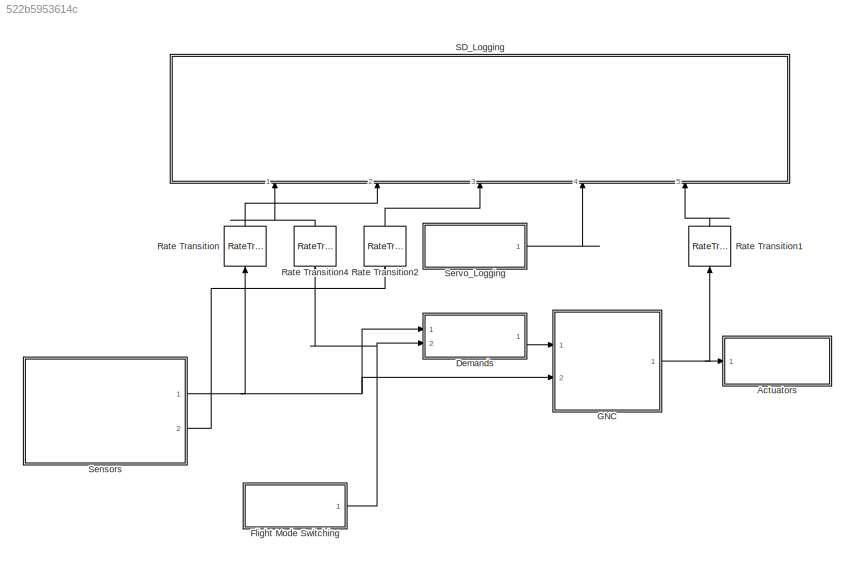
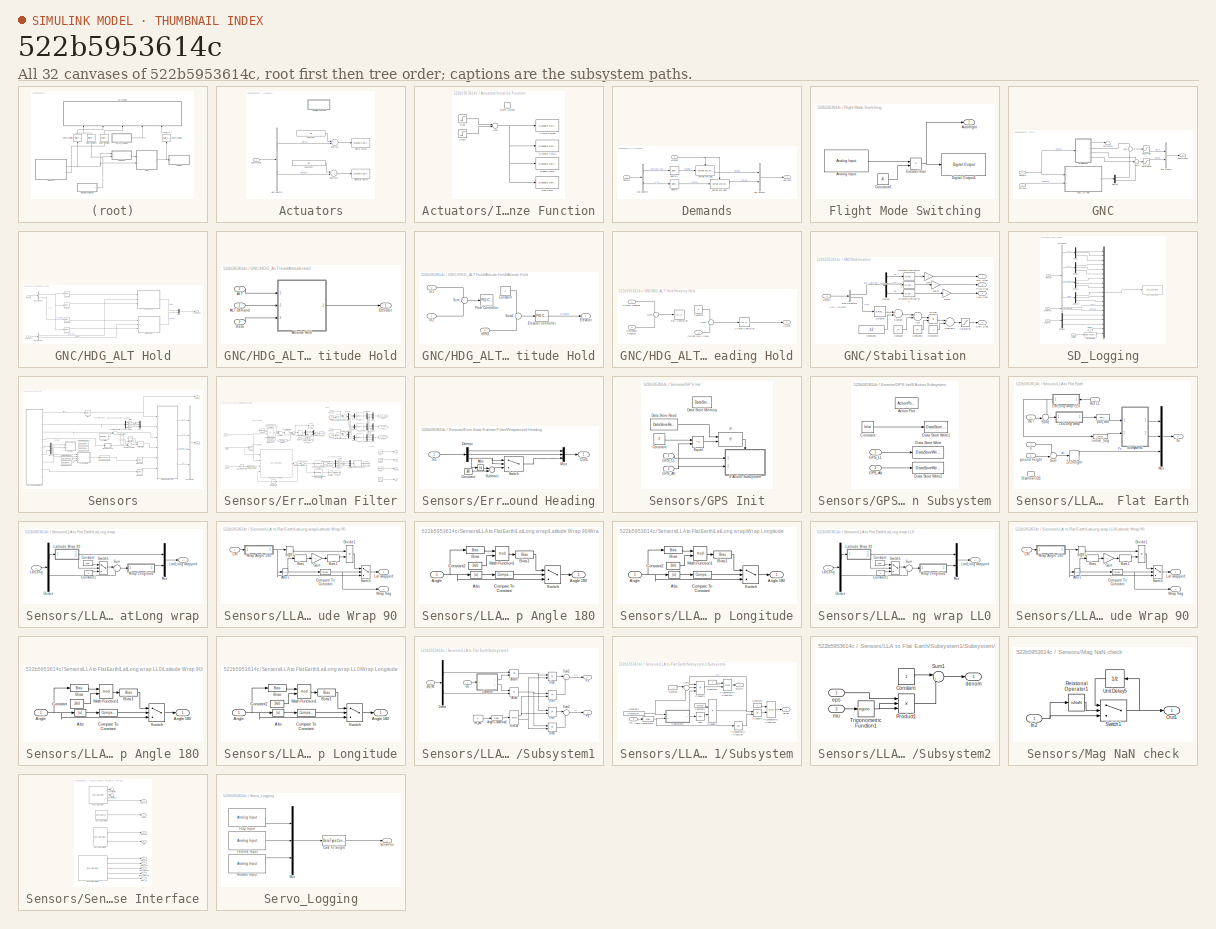
[diagram: thumbnail index - all 32 canvases of the model, root first then tree order]
MODEL slx_522b5953614c
KIND model
CONFIG AbsTol = auto
CONFIG EnableMultiTasking = off
CONFIG FixedStep = auto
CONFIG MaxStep = auto
CONFIG MinStep = auto
CONFIG RelTol = 1e-3
CONFIG SampleTimeConstraint = Unconstrained
CONFIG Solver = FixedStepDiscrete
CONFIG SolverName = FixedStepDiscrete
CONFIG StartTime = 0.0
CONFIG StopTime = inf
WORKSPACE source: MAT-file member
WORKSPACE actuatorCentres: struct (value not decoded)
BLOCK [SubSystem] Actuators
  Ports = [1]
  RequestExecContextInheritance = off
  VariantControl = SimType == 1
BLOCK [Reference] Actuators/Aileron Servos  REF=arduinolib/Standard Servo Write
  Ports = [1]
  SourceBlock = arduinolib/Standard Servo Write
  SourceProductBaseCode = ARDUINO
  SourceProductName = Simulink Support Package for Arduino Hardware
  SourceType = Arduino Standard Servo Write
BLOCK [BusSelector] Actuators/Bus Selector
  OutputAsBus = off
  OutputSignals = Aileron,Elevator
  Ports = [1, 2]
BLOCK [Inport] Actuators/Commands
  IconDisplay = Port number
  OutDataTypeStr = Bus: Commands
BLOCK [Constant] Actuators/Constant
  Value = 90
  VectorParams1D = off
BLOCK [Constant] Actuators/Constant1
  Value = 90
  VectorParams1D = off
BLOCK [Reference] Actuators/Elevator Servo  REF=arduinolib/Standard Servo Write
  Ports = [1]
  SourceBlock = arduinolib/Standard Servo Write
  SourceProductBaseCode = ARDUINO
  SourceProductName = Simulink Support Package for Arduino Hardware
  SourceType = Arduino Standard Servo Write
BLOCK [SubSystem] Actuators/Initialize Function
  Commented = on
  Ports = []
  RequestExecContextInheritance = off
  TreatAsAtomicUnit = on
BLOCK [Reference] Actuators/Initialize Function/Aileron Servos  REF=arduinolib/Standard Servo Write
  Ports = [1]
  SourceBlock = arduinolib/Standard Servo Write
  SourceProductBaseCode = ARDUINO
  SourceProductName = Simulink Support Package for Arduino Hardware
  SourceType = Arduino Standard Servo Write
BLOCK [Reference] Actuators/Initialize Function/Elevator Servo  REF=arduinolib/Standard Servo Write
  Ports = [1]
  SourceBlock = arduinolib/Standard Servo Write
  SourceProductBaseCode = ARDUINO
  SourceProductName = Simulink Support Package for Arduino Hardware
  SourceType = Arduino Standard Servo Write
BLOCK [EventListener] Actuators/Initialize Function/Event Listener
  DisableCoverage = on
  EventName = reset
BLOCK [Reference] Actuators/Initialize Function/Flap Servo  REF=arduinolib/Standard Servo Write
  Ports = [1]
  SourceBlock = arduinolib/Standard Servo Write
  SourceProductBaseCode = ARDUINO
  SourceProductName = Simulink Support Package for Arduino Hardware
  SourceType = Arduino Standard Servo Write
BLOCK [Reference] Actuators/Initialize Function/Rudder Servo  REF=arduinolib/Standard Servo Write
  Ports = [1]
  SourceBlock = arduinolib/Standard Servo Write
  SourceProductBaseCode = ARDUINO
  SourceProductName = Simulink Support Package for Arduino Hardware
  SourceType = Arduino Standard Servo Write
BLOCK [Step] Actuators/Initialize Function/Step
  After = 180
  SampleTime = 0
BLOCK [Step] Actuators/Initialize Function/Step1
  After = 180
  SampleTime = 0
  Time = 6
BLOCK [Sum] Actuators/Initialize Function/Sum
  InputSameDT = off
  Inputs = +-
  OutDataTypeStr = Inherit: Inherit via internal rule
  Ports = [2, 1]
  SaturateOnIntegerOverflow = off
BLOCK [Sum] Actuators/Subtract
  InputSameDT = off
  OutDataTypeStr = Inherit: Inherit via internal rule
  Ports = [2, 1]
  RndMeth = Simplest
  SaturateOnIntegerOverflow = off
BLOCK [Sum] Actuators/Subtract1
  InputSameDT = off
  OutDataTypeStr = Inherit: Inherit via internal rule
  Ports = [2, 1]
  SaturateOnIntegerOverflow = off
BLOCK [SubSystem] Demands
  Ports = [2, 1]
  RequestExecContextInheritance = off
BLOCK [Inport] Demands/ Sensors
  IconDisplay = Port number
BLOCK [Inport] Demands/Autoflight
  IconDisplay = Port number
  Port = 2
BLOCK [BusCreator] Demands/Bus Creator
  DisplayOption = bar
  InheritFromInputs = on
  Inputs = 2
  OutDataTypeStr = Bus: Demands
  Ports = [2, 1]
BLOCK [BusSelector] Demands/Bus Selector
  OutputAsBus = off
  OutputSignals = phi_theta_psi,X_e
  Ports = [1, 2]
BLOCK [Outport] Demands/Demands
  IconDisplay = Port number
BLOCK [Reference] Demands/Sample and Hold  REF=dspsigops/Sample
and Hold
  Ports = [1, 1, 0, 1]
  SourceBlock = dspsigops/Sample\nand Hold
  SourceProductBaseCode = DS
  SourceProductName = DSP System Toolbox
  SourceType = Sample and Hold
BLOCK [Reference] Demands/Sample and Hold1  REF=dspsigops/Sample
and Hold
  Ports = [1, 1, 0, 1]
  SourceBlock = dspsigops/Sample\nand Hold
  SourceProductBaseCode = DS
  SourceProductName = DSP System Toolbox
  SourceType = Sample and Hold
BLOCK [Selector] Demands/Selector
  IndexMode = Zero-based
  IndexOptions = Index vector (dialog)
  Indices = [2]
  InputPortWidth = 3
  OutputSizes = 1
  Ports = [1, 1]
BLOCK [Selector] Demands/Selector1
  IndexMode = Zero-based
  IndexOptions = Index vector (dialog)
  Indices = [2]
  InputPortWidth = 3
  OutputSizes = 1
  Ports = [1, 1]
BLOCK [SubSystem] Flight Mode Switching
  Ports = [0, 1]
  RequestExecContextInheritance = off
  TreatAsGroupedWhenPropagatingVariantConditions = off
BLOCK [Reference] Flight Mode Switching/Analog Input  REF=arduinolib/Analog Input
  Ports = [0, 1]
  SourceBlock = arduinolib/Analog Input
  SourceProductBaseCode = ARDUINO
  SourceProductName = Simulink Support Package for Arduino Hardware
  SourceType = Arduino Analog Input
BLOCK [Outport] Flight Mode Switching/Autoflight
  IconDisplay = Port number
BLOCK [Constant] Flight Mode Switching/Constant4
  OutDataTypeStr = uint16
  Value = 45
BLOCK [Reference] Flight Mode Switching/Digital Output1  REF=arduinolib/Digital Output
  Ports = [1]
  SourceBlock = arduinolib/Digital Output
  SourceProductBaseCode = ARDUINO
  SourceProductName = Simulink Support Package for Arduino Hardware
  SourceType = Arduino Digital Output
BLOCK [RelationalOperator] Flight Mode Switching/GreaterThan
  InputSameDT = off
  Operator = >
  OutDataTypeStr = boolean
  Ports = [2, 1]
  RndMeth = Simplest
BLOCK [SubSystem] GNC
  Ports = [2, 1]
  RequestExecContextInheritance = off
  VariantControl = SimType==1
BLOCK [BusCreator] GNC/Bus Creator
  DisplayOption = bar
  InheritFromInputs = on
  Inputs = Aileron,Elevator
  OutDataTypeStr = Bus: Commands
  Ports = [2, 1]
BLOCK [Outport] GNC/Commands
  IconDisplay = Port number
BLOCK [Inport] GNC/Demands
  IconDisplay = Port number
  OutDataTypeStr = Bus: Demands
BLOCK [Demux] GNC/Demux
  DisplayOption = bar
  Outputs = 2
  Ports = [1, 2]
BLOCK [SubSystem] GNC/HDG_ALT Hold
  Ports = [2, 1]
  RequestExecContextInheritance = off
BLOCK [SubSystem] GNC/HDG_ALT Hold/Altitude Hold
  Ports = [3, 1]
  PreDeleteFcn = Stateflow.SLINSF.SimulinkMan.removePreDeleteFcn
  RequestExecContextInheritance = off
  UndoDeleteFcn = Stateflow.SLINSF.SimulinkMan.restorePreDeleteFcn
BLOCK [Inport] GNC/HDG_ALT Hold/Altitude Hold/ALT
  IconDisplay = Port number
BLOCK [Inport] GNC/HDG_ALT Hold/Altitude Hold/ALT Demand
  IconDisplay = Port number
  Port = 2
BLOCK [SubSystem] GNC/HDG_ALT Hold/Altitude Hold/Altitude Hold
  Ports = [3, 1]
  RequestExecContextInheritance = off
BLOCK [Constant] GNC/HDG_ALT Hold/Altitude Hold/Altitude Hold/Constant
  OutDataTypeStr = single
  Value = 0
BLOCK [Outport] GNC/HDG_ALT Hold/Altitude Hold/Altitude Hold/Elevator
  IconDisplay = Port number
BLOCK [Reference] GNC/HDG_ALT Hold/Altitude Hold/Altitude Hold/Elevator Controller  REF=simulink/Continuous/PID Controller
  Ports = [1, 1]
  SourceBlock = simulink/Continuous/PID Controller
  SourceProductBaseCode = SL
  SourceProductName = Simulink
  SourceType = PID 1dof
BLOCK [Inport] GNC/HDG_ALT Hold/Altitude Hold/Altitude Hold/In1
  IconDisplay = Port number
BLOCK [Inport] GNC/HDG_ALT Hold/Altitude Hold/Altitude Hold/In2
  IconDisplay = Port number
  Port = 2
BLOCK [Reference] GNC/HDG_ALT Hold/Altitude Hold/Altitude Hold/Pitch Controller  REF=simulink/Continuous/PID Controller
  Ports = [1, 1]
  SourceBlock = simulink/Continuous/PID Controller
  SourceProductBaseCode = SL
  SourceProductName = Simulink
  SourceType = PID 1dof
BLOCK [Sum] GNC/HDG_ALT Hold/Altitude Hold/Altitude Hold/Sum
  IconShape = round
  InputSameDT = off
  Inputs = +-
  OutDataTypeStr = Inherit: Inherit via internal rule
  Ports = [2, 1]
  SaturateOnIntegerOverflow = off
BLOCK [Sum] GNC/HDG_ALT Hold/Altitude Hold/Altitude Hold/Sum1
  IconShape = round
  InputSameDT = off
  Inputs = +-
  OutDataTypeStr = Inherit: Inherit via internal rule
  Ports = [2, 1]
  SaturateOnIntegerOverflow = off
BLOCK [Inport] GNC/HDG_ALT Hold/Altitude Hold/Altitude Hold/theta
  IconDisplay = Port number
  Port = 3
BLOCK [Outport] GNC/HDG_ALT Hold/Altitude Hold/Elevator
  IconDisplay = Port number
BLOCK [Inport] GNC/HDG_ALT Hold/Altitude Hold/theta
  IconDisplay = Port number
  Port = 3
BLOCK [BusSelector] GNC/HDG_ALT Hold/Bus Selector
  OutputAsBus = off
  OutputSignals = phi_theta_psi,X_e
  Ports = [1, 2]
BLOCK [BusSelector] GNC/HDG_ALT Hold/Bus Selector1
  OutputAsBus = off
  OutputSignals = Heading,Altitude
  Ports = [1, 2]
BLOCK [Outport] GNC/HDG_ALT Hold/Commands
  IconDisplay = Port number
BLOCK [Inport] GNC/HDG_ALT Hold/Demands
  IconDisplay = Port number
  OutDataTypeStr = Bus: Demands
  Port = 2
BLOCK [SubSystem] GNC/HDG_ALT Hold/Heading Hold
  Ports = [3, 1]
  RequestExecContextInheritance = off
BLOCK [Outport] GNC/HDG_ALT Hold/Heading Hold/Aileron
  IconDisplay = Port number
BLOCK [Reference] GNC/HDG_ALT Hold/Heading Hold/Aileron Controller  REF=simulink/Continuous/PID Controller
  Ports = [1, 1]
  SourceBlock = simulink/Continuous/PID Controller
  SourceProductBaseCode = SL
  SourceProductName = Simulink
  SourceType = PID 1dof
BLOCK [Constant] GNC/HDG_ALT Hold/Heading Hold/Constant
  OutDataTypeStr = single
  Value = 0
BLOCK [Inport] GNC/HDG_ALT Hold/Heading Hold/Current Heading
  IconDisplay = Port number
BLOCK [Inport] GNC/HDG_ALT Hold/Heading Hold/Current Roll Angle
  IconDisplay = Port number
  Port = 3
BLOCK [Inport] GNC/HDG_ALT Hold/Heading Hold/Demanded Heading
  IconDisplay = Port number
  Port = 2
BLOCK [Reference] GNC/HDG_ALT Hold/Heading Hold/Roll Controller  REF=simulink/Continuous/PID Controller
  Ports = [1, 1]
  SourceBlock = simulink/Continuous/PID Controller
  SourceProductBaseCode = SL
  SourceProductName = Simulink
  SourceType = PID 1dof
BLOCK [Sum] GNC/HDG_ALT Hold/Heading Hold/Sum
  IconShape = round
  InputSameDT = off
  Inputs = -+
  OutDataTypeStr = Inherit: Inherit via internal rule
  Ports = [2, 1]
  SaturateOnIntegerOverflow = off
BLOCK [Sum] GNC/HDG_ALT Hold/Heading Hold/Sum1
  IconShape = round
  InputSameDT = off
  Inputs = +-
  OutDataTypeStr = Inherit: Inherit via internal rule
  Ports = [2, 1]
  SaturateOnIntegerOverflow = off
BLOCK [Mux] GNC/HDG_ALT Hold/Mux
  DisplayOption = bar
  Inputs = 2
  Ports = [2, 1]
BLOCK [Selector] GNC/HDG_ALT Hold/Selector
  IndexMode = Zero-based
  IndexOptions = Index vector (dialog)
  Indices = [0]
  InputPortWidth = 3
  OutputSizes = 1
  Ports = [1, 1]
BLOCK [Selector] GNC/HDG_ALT Hold/Selector1
  IndexMode = Zero-based
  IndexOptions = Index vector (dialog)
  Indices = [2]
  InputPortWidth = 3
  OutputSizes = 1
  Ports = [1, 1]
BLOCK [Selector] GNC/HDG_ALT Hold/Selector2
  IndexMode = Zero-based
  IndexOptions = Index vector (dialog)
  Indices = [1]
  InputPortWidth = 3
  OutputSizes = 1
  Ports = [1, 1]
BLOCK [Selector] GNC/HDG_ALT Hold/Selector3
  IndexMode = Zero-based
  IndexOptions = Index vector (dialog)
  Indices = [2]
  InputPortWidth = 3
  OutputSizes = 1
  Ports = [1, 1]
BLOCK [Inport] GNC/HDG_ALT Hold/Sensors
  IconDisplay = Port number
  OutDataTypeStr = Bus: Sensors
BLOCK [Saturate] GNC/Saturation
  Commented = through
  InputPortMap = u0
  LowerLimit = 0
  Ports = [1, 1]
  UpperLimit = 180
BLOCK [Saturate] GNC/Saturation1
  Commented = through
  InputPortMap = u0
  LowerLimit = 0
  Ports = [1, 1]
  UpperLimit = 180
BLOCK [Inport] GNC/Sensors
  IconDisplay = Port number
  OutDataTypeStr = Bus: Sensors
  Port = 2
BLOCK [SubSystem] GNC/Stabilisation
  Commented = on
  Ports = [1, 4]
  RequestExecContextInheritance = off
BLOCK [Sum] GNC/Stabilisation/Add
  InputSameDT = off
  OutDataTypeStr = Inherit: Inherit via internal rule
  Ports = [2, 1]
  SaturateOnIntegerOverflow = off
BLOCK [BusSelector] GNC/Stabilisation/Bus Selector2
  OutputAsBus = off
  OutputSignals = phi_theta_psi,V_e
  Ports = [1, 2]
BLOCK [Constant] GNC/Stabilisation/Constant
  OutDataTypeStr = single
  Value = 10
BLOCK [Constant] GNC/Stabilisation/Constant1
  OutDataTypeStr = single
  Value = 12
BLOCK [Constant] GNC/Stabilisation/Constant2
  OutDataTypeStr = single
  Value = 20
BLOCK [Constant] GNC/Stabilisation/Constant3
  OutDataTypeStr = single
BLOCK [Demux] GNC/Stabilisation/Demux
  DisplayOption = bar
  Outputs = 3
  Ports = [1, 3]
BLOCK [Reference] GNC/Stabilisation/Discrete Derivative  REF=simulink/Discrete/Discrete Derivative
  Ports = [1, 1]
  SourceBlock = simulink/Discrete/Discrete Derivative
  SourceProductBaseCode = SL
  SourceProductName = Simulink
  SourceType = Discrete Derivative
BLOCK [Reference] GNC/Stabilisation/Discrete Derivative1  REF=simulink/Discrete/Discrete Derivative
  Ports = [1, 1]
  SourceBlock = simulink/Discrete/Discrete Derivative
  SourceProductBaseCode = SL
  SourceProductName = Simulink
  SourceType = Discrete Derivative
BLOCK [Reference] GNC/Stabilisation/Discrete Derivative2  REF=simulink/Discrete/Discrete Derivative
  Ports = [1, 1]
  SourceBlock = simulink/Discrete/Discrete Derivative
  SourceProductBaseCode = SL
  SourceProductName = Simulink
  SourceType = Discrete Derivative
BLOCK [Product] GNC/Stabilisation/Divide
  InputSameDT = off
  Inputs = /*
  OutDataTypeStr = Inherit: Inherit via internal rule
  Ports = [2, 1]
  RndMeth = Floor
  SaturateOnIntegerOverflow = off
BLOCK [Gain] GNC/Stabilisation/Gain
  Gain = -1
  OutDataTypeStr = Inherit: Inherit via internal rule
  ParamDataTypeStr = Inherit: Inherit via internal rule
  SaturateOnIntegerOverflow = off
BLOCK [Gain] GNC/Stabilisation/Gain1
  Gain = -1
  OutDataTypeStr = Inherit: Inherit via internal rule
  ParamDataTypeStr = Inherit: Inherit via internal rule
  SaturateOnIntegerOverflow = off
BLOCK [Gain] GNC/Stabilisation/Gain2
  Gain = -1
  OutDataTypeStr = Inherit: Inherit via internal rule
  ParamDataTypeStr = Inherit: Inherit via internal rule
  SaturateOnIntegerOverflow = off
BLOCK [Outport] GNC/Stabilisation/Pitch Stab
  IconDisplay = Port number
  Port = 3
BLOCK [Outport] GNC/Stabilisation/Roll Stab
  IconDisplay = Port number
  Port = 2
BLOCK [Saturate] GNC/Stabilisation/Saturation
  InputPortMap = u0
  LowerLimit = 0
  Ports = [1, 1]
  UpperLimit = 1
BLOCK [Selector] GNC/Stabilisation/Selector
  IndexMode = Zero-based
  IndexOptions = Index vector (dialog)
  Indices = [0]
  InputPortWidth = 3
  OutputSizes = 1
  Ports = [1, 1]
BLOCK [Inport] GNC/Stabilisation/Sensors
  IconDisplay = Port number
BLOCK [Outport] GNC/Stabilisation/Stall Stab
  IconDisplay = Port number
  Port = 4
BLOCK [Sum] GNC/Stabilisation/Subtract
  InputSameDT = off
  Inputs = +-
  OutDataTypeStr = Inherit: Inherit via internal rule
  Ports = [2, 1]
  SaturateOnIntegerOverflow = off
BLOCK [Sum] GNC/Stabilisation/Subtract1
  InputSameDT = off
  Inputs = +-
  OutDataTypeStr = Inherit: Inherit via internal rule
  Ports = [2, 1]
  SaturateOnIntegerOverflow = off
BLOCK [Outport] GNC/Stabilisation/Yaw Stab
  IconDisplay = Port number
BLOCK [Sum] GNC/Sum
  IconShape = round
  InputSameDT = off
  OutDataTypeStr = Inherit: Inherit via internal rule
  Ports = [2, 1]
  SaturateOnIntegerOverflow = off
BLOCK [Sum] GNC/Sum1
  IconShape = round
  InputSameDT = off
  Inputs = +-+
  OutDataTypeStr = Inherit: Inherit via internal rule
  Ports = [3, 1]
  SaturateOnIntegerOverflow = off
BLOCK [Terminator] GNC/Terminator
BLOCK [RateTransition] Rate Transition
  Deterministic = off
  OutPortSampleTime = 0.15
BLOCK [RateTransition] Rate Transition1
  Deterministic = off
  OutPortSampleTime = 0.15
BLOCK [RateTransition] Rate Transition2
  Deterministic = off
  OutPortSampleTime = 0.15
BLOCK [RateTransition] Rate Transition4
  Deterministic = off
  OutPortSampleTime = 0.15
BLOCK [SubSystem] SD_Logging
  Ports = [5]
  RequestExecContextInheritance = off
  VariantControl = SecArd == 1
BLOCK [Inport] SD_Logging/Autoflight
  IconDisplay = Port number
BLOCK [Inport] SD_Logging/Baro Alt
  IconDisplay = Port number
  Port = 3
BLOCK [BusSelector] SD_Logging/Bus Selector
  OutputAsBus = off
  OutputSignals = X_e,V_e,phi_theta_psi,pqr
  Ports = [1, 4]
BLOCK [BusSelector] SD_Logging/Bus Selector1
  OutputAsBus = off
  OutputSignals = Aileron,Elevator
  Ports = [1, 2]
BLOCK [DataTypeConversion] SD_Logging/Cast To Single
  OutDataTypeStr = single
  RndMeth = Floor
  SaturateOnIntegerOverflow = off
BLOCK [Inport] SD_Logging/Commands
  IconDisplay = Port number
  OutDataTypeStr = Bus: Commands
  Port = 5
BLOCK [Demux] SD_Logging/Demux
  DisplayOption = bar
  Outputs = 3
  Ports = [1, 3]
BLOCK [Demux] SD_Logging/Demux1
  DisplayOption = bar
  Outputs = 3
  Ports = [1, 3]
BLOCK [Demux] SD_Logging/Demux2
  DisplayOption = bar
  Outputs = 3
  Ports = [1, 3]
BLOCK [Demux] SD_Logging/Demux3
  DisplayOption = bar
  Outputs = 3
  Ports = [1, 3]
BLOCK [Demux] SD_Logging/Demux4
  DisplayOption = bar
  Outputs = 3
  Ports = [1, 3]
BLOCK [MATLABSystem] SD_Logging/MATLAB System
  MaskDisplay = disp('SDLogger');\nport_label('input',1,'data');
  MaskType = SDLogger
  Ports = [1]
  SimulateUsing = Code generation
  System = SDLogger
BLOCK [Mux] SD_Logging/Mux
  DisplayOption = bar
  Inputs = 19
  Ports = [19, 1]
BLOCK [Inport] SD_Logging/Sensors 
  IconDisplay = Port number
  OutDataTypeStr = Bus: Sensors
  Port = 2
BLOCK [Inport] SD_Logging/ServoPos
  IconDisplay = Port number
  Port = 4
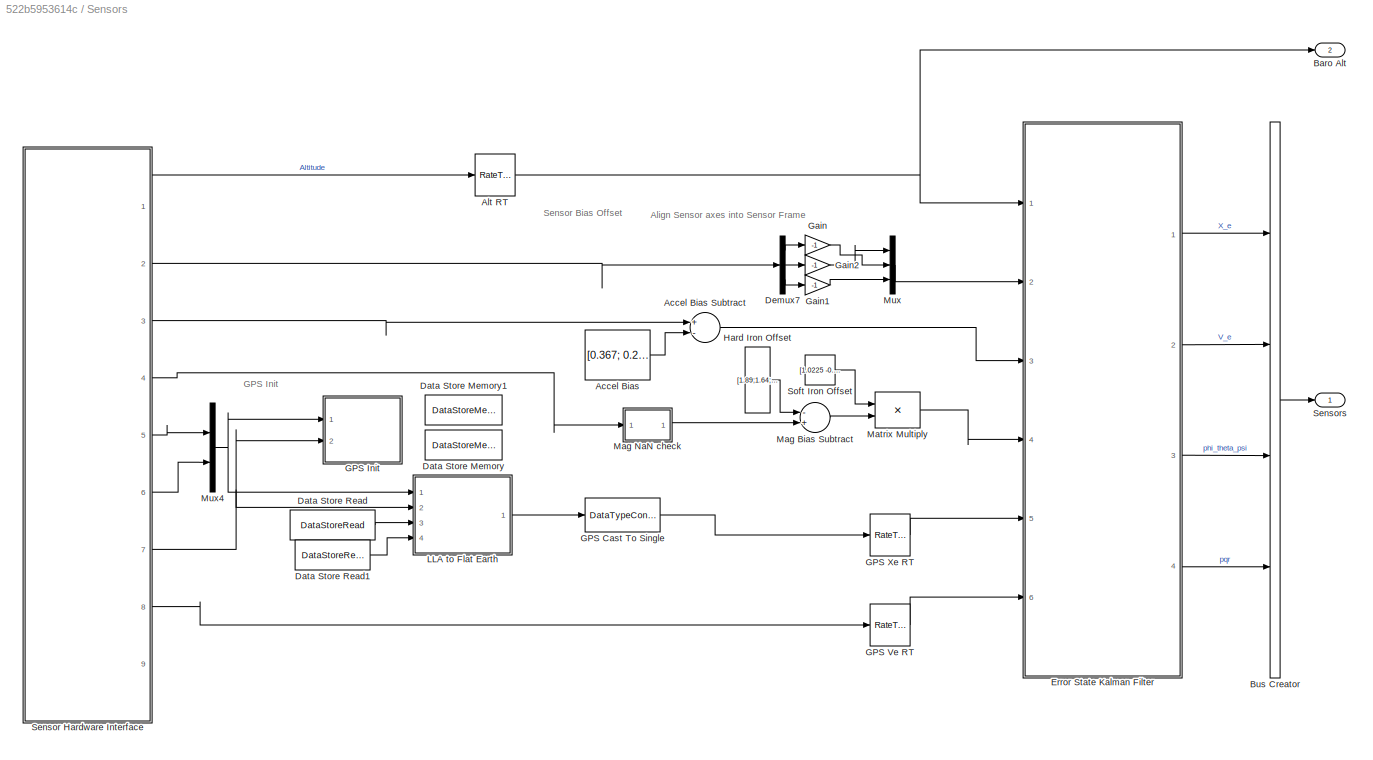
BLOCK [SubSystem] Sensors
  Ports = [0, 2]
  RequestExecContextInheritance = off
  VariantControl = SimType==1
BLOCK [Outport] Sensors/ Sensors
  IconDisplay = Port number
BLOCK [Constant] Sensors/Accel Bias
  Value = [0.367; 0.248; -0.0955]
  VectorParams1D = off
BLOCK [Sum] Sensors/Accel Bias Subtract
  InputSameDT = off
  Inputs = +-
  OutDataTypeStr = single
  Ports = [2, 1]
  SaturateOnIntegerOverflow = off
BLOCK [RateTransition] Sensors/Alt RT
  Deterministic = off
BLOCK [Outport] Sensors/Baro Alt
  IconDisplay = Port number
  Port = 2
BLOCK [BusCreator] Sensors/Bus Creator
  DisplayOption = bar
  InheritFromInputs = off
  Inputs = 4
  OutDataTypeStr = Bus: Sensors
  Ports = [4, 1]
BLOCK [DataStoreMemory] Sensors/Data Store Memory
  DataStoreName = GPS_ref_height
  OutDataTypeStr = single
  ReadBeforeWriteMsg = warning
  ShowAdditionalParam = off
  SignalType = real
  WriteAfterReadMsg = warning
  WriteAfterWriteMsg = warning
BLOCK [DataStoreMemory] Sensors/Data Store Memory1
  DataStoreName = GPS_Init_LL
  InitialValue = [0 0]
  OutDataTypeStr = single
  ReadBeforeWriteMsg = warning
  ShowAdditionalParam = off
  WriteAfterReadMsg = warning
  WriteAfterWriteMsg = warning
BLOCK [DataStoreRead] Sensors/Data Store Read
  DataStoreElements = GPS_ref_height
  DataStoreName = GPS_ref_height
  Ports = [0, 1]
BLOCK [DataStoreRead] Sensors/Data Store Read1
  DataStoreName = GPS_Init_LL
  Ports = [0, 1]
BLOCK [Demux] Sensors/Demux7
  DisplayOption = bar
  Outputs = 3
  Ports = [1, 3]
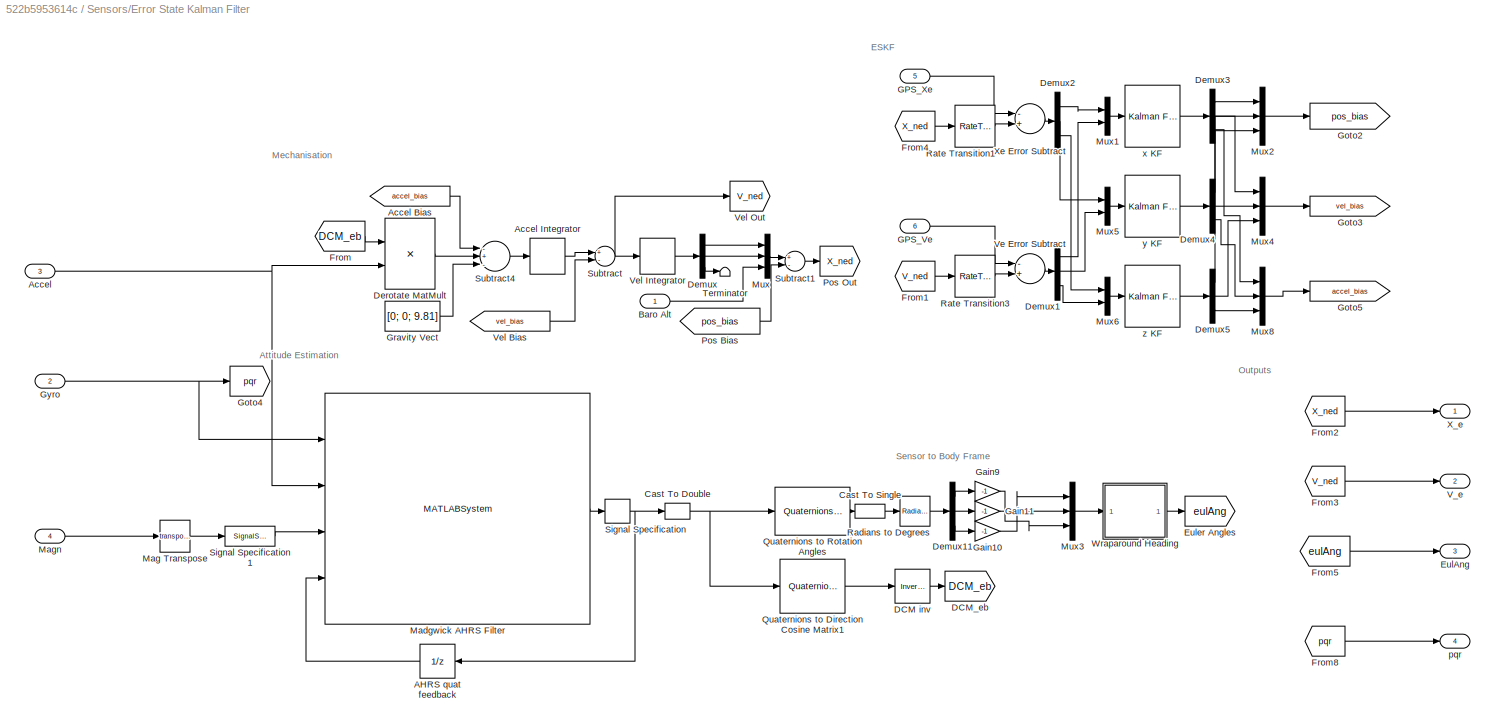
BLOCK [SubSystem] Sensors/Error State Kalman Filter
  Ports = [6, 4]
  RequestExecContextInheritance = off
BLOCK [UnitDelay] Sensors/Error State Kalman Filter/AHRS quat feedback
  HasFrameUpgradeWarning = on
  InitialCondition = [1 0 0 0]
  SampleTime = sensorSampleTime
BLOCK [Inport] Sensors/Error State Kalman Filter/Accel
  IconDisplay = Port number
  Port = 3
BLOCK [From] Sensors/Error State Kalman Filter/Accel Bias
  GotoTag = accel_bias
BLOCK [DiscreteIntegrator] Sensors/Error State Kalman Filter/Accel Integrator
  ICPrevOutput = DiscIntNeverNeededParam
  ICPrevScaledInput = DiscIntNeverNeededParam
  InitialConditionSetting = Auto
  Ports = [1, 1]
  SampleTime = -1
  gainval = 1
BLOCK [Inport] Sensors/Error State Kalman Filter/Baro Alt
  IconDisplay = Port number
BLOCK [DataTypeConversion] Sensors/Error State Kalman Filter/Cast To Double
  OutDataTypeStr = double
  RndMeth = Floor
  SaturateOnIntegerOverflow = off
BLOCK [DataTypeConversion] Sensors/Error State Kalman Filter/Cast To Single
  OutDataTypeStr = single
  RndMeth = Floor
  SaturateOnIntegerOverflow = off
BLOCK [Reference] Sensors/Error State Kalman Filter/DCM inv  REF=aerolibutil/Invert 
3x3 Matrix
  Ports = [1, 1]
  SourceBlock = aerolibutil/Invert \n3x3 Matrix
  SourceProductBaseCode = AE
  SourceProductName = Aerospace Blockset
  SourceType = Invert 3x3 Matrix
BLOCK [Goto] Sensors/Error State Kalman Filter/DCM_eb
  GotoTag = DCM_eb
BLOCK [Demux] Sensors/Error State Kalman Filter/Demux
  DisplayOption = bar
  Outputs = 3
  Ports = [1, 3]
BLOCK [Demux] Sensors/Error State Kalman Filter/Demux1
  DisplayOption = bar
  Outputs = 3
  Ports = [1, 3]
BLOCK [Demux] Sensors/Error State Kalman Filter/Demux11
  DisplayOption = bar
  Outputs = 3
  Ports = [1, 3]
BLOCK [Demux] Sensors/Error State Kalman Filter/Demux2
  DisplayOption = bar
  Outputs = 3
  Ports = [1, 3]
BLOCK [Demux] Sensors/Error State Kalman Filter/Demux3
  DisplayOption = bar
  Outputs = 3
  Ports = [1, 3]
BLOCK [Demux] Sensors/Error State Kalman Filter/Demux4
  DisplayOption = bar
  Outputs = 3
  Ports = [1, 3]
BLOCK [Demux] Sensors/Error State Kalman Filter/Demux5
  DisplayOption = bar
  Outputs = 3
  Ports = [1, 3]
BLOCK [Product] Sensors/Error State Kalman Filter/Derotate MatMult
  InputSameDT = off
  Multiplication = Matrix(*)
  OutDataTypeStr = single
  Ports = [2, 1]
  RndMeth = Simplest
  SaturateOnIntegerOverflow = off
BLOCK [Outport] Sensors/Error State Kalman Filter/EulAng
  IconDisplay = Port number
  Port = 3
BLOCK [Goto] Sensors/Error State Kalman Filter/Euler Angles
  GotoTag = eulAng
BLOCK [From] Sensors/Error State Kalman Filter/From
  GotoTag = DCM_eb
BLOCK [From] Sensors/Error State Kalman Filter/From1
  GotoTag = V_ned
BLOCK [From] Sensors/Error State Kalman Filter/From2
  GotoTag = X_ned
BLOCK [From] Sensors/Error State Kalman Filter/From3
  GotoTag = V_ned
BLOCK [From] Sensors/Error State Kalman Filter/From4
  GotoTag = X_ned
BLOCK [From] Sensors/Error State Kalman Filter/From5
  GotoTag = eulAng
BLOCK [From] Sensors/Error State Kalman Filter/From8
  GotoTag = pqr
BLOCK [Inport] Sensors/Error State Kalman Filter/GPS_Ve
  IconDisplay = Port number
  Port = 6
  VarSizeSig = No
BLOCK [Inport] Sensors/Error State Kalman Filter/GPS_Xe
  IconDisplay = Port number
  Port = 5
  VarSizeSig = No
BLOCK [Gain] Sensors/Error State Kalman Filter/Gain10
  Commented = through
  Gain = -1
  OutDataTypeStr = Inherit: Inherit via internal rule
  ParamDataTypeStr = Inherit: Inherit via internal rule
  SaturateOnIntegerOverflow = off
BLOCK [Gain] Sensors/Error State Kalman Filter/Gain11
  Gain = -1
  OutDataTypeStr = Inherit: Inherit via internal rule
  ParamDataTypeStr = Inherit: Inherit via internal rule
  SaturateOnIntegerOverflow = off
BLOCK [Gain] Sensors/Error State Kalman Filter/Gain9
  Gain = -1
  OutDataTypeStr = Inherit: Inherit via internal rule
  ParamDataTypeStr = Inherit: Inherit via internal rule
  SaturateOnIntegerOverflow = off
BLOCK [Goto] Sensors/Error State Kalman Filter/Goto2
  GotoTag = pos_bias
BLOCK [Goto] Sensors/Error State Kalman Filter/Goto3
  GotoTag = vel_bias
BLOCK [Goto] Sensors/Error State Kalman Filter/Goto4
  GotoTag = pqr
BLOCK [Goto] Sensors/Error State Kalman Filter/Goto5
  GotoTag = accel_bias
BLOCK [Constant] Sensors/Error State Kalman Filter/Gravity Vect
  OutDataTypeStr = single
  Value = [0; 0; 9.81]
  VectorParams1D = off
BLOCK [Inport] Sensors/Error State Kalman Filter/Gyro
  IconDisplay = Port number
  Port = 2
BLOCK [MATLABSystem] Sensors/Error State Kalman Filter/Madgwick AHRS Filter
  Beta = 1
  MaskDisplay = disp('MadgwickAHRSFilter');\nport_label('input',1,'Gyroscope');\nport_label('input',2,'Accelerometer');\nport_label('input',3,'Magnetometer');\nport_label('input',4,'q');\nport_label('output',1,'quat');
  MaskType = MadgwickAHRSFilter
  Ports = [4, 1]
  SamplePeriod = sensorSampleTime
  SimulateUsing = Code generation
  System = MadgwickAHRSFilter
BLOCK [Math] Sensors/Error State Kalman Filter/Mag Transpose
  Operator = transpose
  Ports = [1, 1]
BLOCK [Inport] Sensors/Error State Kalman Filter/Magn
  IconDisplay = Port number
  Port = 4
BLOCK [Mux] Sensors/Error State Kalman Filter/Mux
  DisplayOption = bar
  Inputs = 3
  Ports = [3, 1]
BLOCK [Mux] Sensors/Error State Kalman Filter/Mux1
  DisplayOption = bar
  Inputs = 2
  Ports = [2, 1]
BLOCK [Mux] Sensors/Error State Kalman Filter/Mux2
  DisplayOption = bar
  Inputs = 3
  Ports = [3, 1]
BLOCK [Mux] Sensors/Error State Kalman Filter/Mux3
  DisplayOption = bar
  Inputs = 3
  Ports = [3, 1]
BLOCK [Mux] Sensors/Error State Kalman Filter/Mux4
  DisplayOption = bar
  Inputs = 3
  Ports = [3, 1]
BLOCK [Mux] Sensors/Error State Kalman Filter/Mux5
  DisplayOption = bar
  Inputs = 2
  Ports = [2, 1]
BLOCK [Mux] Sensors/Error State Kalman Filter/Mux6
  DisplayOption = bar
  Inputs = 2
  Ports = [2, 1]
BLOCK [Mux] Sensors/Error State Kalman Filter/Mux8
  DisplayOption = bar
  Inputs = 3
  Ports = [3, 1]
BLOCK [From] Sensors/Error State Kalman Filter/Pos Bias
  GotoTag = pos_bias
BLOCK [Goto] Sensors/Error State Kalman Filter/Pos Out
  GotoTag = X_ned
BLOCK [Reference] Sensors/Error State Kalman Filter/Quaternions to Direction Cosine Matrix1  REF=sharedtransform/Quaternions to 
Direction Cosine Matrix
  Ports = [1, 1]
  SourceBlock = sharedtransform/Quaternions to \nDirection Cosine Matrix
  SourceProductBaseCode = AE
  SourceProductName = Aerospace Blockset
  SourceType = Quaternion2DCM
BLOCK [Reference] Sensors/Error State Kalman Filter/Quaternions to Rotation Angles  REF=sharedtransform/Quaternions to Rotation Angles
  AttributesFormatString = Rotation Order: %<rotationOrder>
  Ports = [1, 1]
  SourceBlock = sharedtransform/Quaternions to Rotation Angles
  SourceProductBaseCode = AE
  SourceProductName = Aerospace Blockset
  SourceType = Quat2Ang
BLOCK [Reference] Sensors/Error State Kalman Filter/Radians to Degrees  REF=simulink_extras/Transformations/Radians
to Degrees
  Ports = [1, 1]
  SourceBlock = simulink_extras/Transformations/Radians\nto Degrees
  SourceProductBaseCode = SL
  SourceProductName = Simulink
  SourceType = RadiansToDegrees
BLOCK [RateTransition] Sensors/Error State Kalman Filter/Rate Transition1
  Deterministic = off
  OutPortSampleTime = 0.15
BLOCK [RateTransition] Sensors/Error State Kalman Filter/Rate Transition3
  Deterministic = off
  OutPortSampleTime = 0.15
BLOCK [SignalSpecification] Sensors/Error State Kalman Filter/Signal Specification
  Dimensions = [1 4]
  OutDataTypeStr = single
  VarSizeSig = No
BLOCK [SignalSpecification] Sensors/Error State Kalman Filter/Signal Specification1
  Dimensions = [1 3]
  OutDataTypeStr = single
  VarSizeSig = No
BLOCK [Sum] Sensors/Error State Kalman Filter/Subtract
  InputSameDT = off
  Inputs = +-
  OutDataTypeStr = Inherit: Inherit via internal rule
  Ports = [2, 1]
  SaturateOnIntegerOverflow = off
BLOCK [Sum] Sensors/Error State Kalman Filter/Subtract1
  InputSameDT = off
  Inputs = +-
  OutDataTypeStr = Inherit: Inherit via internal rule
  Ports = [2, 1]
  SaturateOnIntegerOverflow = off
BLOCK [Sum] Sensors/Error State Kalman Filter/Subtract4
  AccumDataTypeStr = single
  InputSameDT = off
  Inputs = -+-
  OutDataTypeStr = Inherit: Inherit via internal rule
  Ports = [3, 1]
  SaturateOnIntegerOverflow = off
BLOCK [Terminator] Sensors/Error State Kalman Filter/Terminator
BLOCK [Outport] Sensors/Error State Kalman Filter/V_e
  IconDisplay = Port number
  Port = 2
BLOCK [Sum] Sensors/Error State Kalman Filter/Ve Error Subtract
  AccumDataTypeStr = single
  InputSameDT = off
  Inputs = -+
  OutDataTypeStr = single
  Ports = [2, 1]
  RndMeth = Simplest
  SaturateOnIntegerOverflow = off
BLOCK [From] Sensors/Error State Kalman Filter/Vel Bias
  GotoTag = vel_bias
BLOCK [DiscreteIntegrator] Sensors/Error State Kalman Filter/Vel Integrator
  ICPrevOutput = DiscIntNeverNeededParam
  ICPrevScaledInput = DiscIntNeverNeededParam
  InitialConditionSetting = Auto
  OutDataTypeStr = single
  Ports = [1, 1]
  SampleTime = -1
  gainval = 1
BLOCK [Goto] Sensors/Error State Kalman Filter/Vel Out
  GotoTag = V_ned
BLOCK [SubSystem] Sensors/Error State Kalman Filter/Wraparound Heading
  Ports = [1, 1]
  RequestExecContextInheritance = off
BLOCK [Abs] Sensors/Error State Kalman Filter/Wraparound Heading/Abs
  SaturateOnIntegerOverflow = off
BLOCK [Constant] Sensors/Error State Kalman Filter/Wraparound Heading/Constant
  OutDataTypeStr = single
  Value = 360
BLOCK [Demux] Sensors/Error State Kalman Filter/Wraparound Heading/Demux
  DisplayOption = bar
  Outputs = 3
  Ports = [1, 3]
BLOCK [Inport] Sensors/Error State Kalman Filter/Wraparound Heading/In1
  IconDisplay = Port number
BLOCK [Mux] Sensors/Error State Kalman Filter/Wraparound Heading/Mux
  DisplayOption = bar
  Inputs = 3
  Ports = [3, 1]
BLOCK [Outport] Sensors/Error State Kalman Filter/Wraparound Heading/Out1
  IconDisplay = Port number
BLOCK [Sum] Sensors/Error State Kalman Filter/Wraparound Heading/Subtract
  InputSameDT = off
  Inputs = -+
  OutDataTypeStr = Inherit: Inherit via internal rule
  Ports = [2, 1]
  SaturateOnIntegerOverflow = off
BLOCK [Switch] Sensors/Error State Kalman Filter/Wraparound Heading/Switch
  Criteria = u2 > Threshold
  InputSameDT = off
  OutDataTypeStr = single
  SaturateOnIntegerOverflow = off
BLOCK [Outport] Sensors/Error State Kalman Filter/X_e
  IconDisplay = Port number
BLOCK [Sum] Sensors/Error State Kalman Filter/Xe Error Subtract
  AccumDataTypeStr = single
  InputSameDT = off
  Inputs = -+
  OutDataTypeStr = single
  Ports = [2, 1]
  RndMeth = Simplest
  SaturateOnIntegerOverflow = off
BLOCK [Outport] Sensors/Error State Kalman Filter/pqr
  IconDisplay = Port number
  Port = 4
BLOCK [Reference] Sensors/Error State Kalman Filter/x KF  REF=ctrlSharedLib/Kalman Filter
  Ports = [1, 1]
  SourceBlock = ctrlSharedLib/Kalman Filter
  SourceProductBaseCode = CT
  SourceProductName = Control System Toolbox
  SourceType = ctrlKalmanFilter
BLOCK [Reference] Sensors/Error State Kalman Filter/y KF  REF=ctrlSharedLib/Kalman Filter
  Ports = [1, 1]
  SourceBlock = ctrlSharedLib/Kalman Filter
  SourceProductBaseCode = CT
  SourceProductName = Control System Toolbox
  SourceType = ctrlKalmanFilter
BLOCK [Reference] Sensors/Error State Kalman Filter/z KF  REF=ctrlSharedLib/Kalman Filter
  Ports = [1, 1]
  SourceBlock = ctrlSharedLib/Kalman Filter
  SourceProductBaseCode = CT
  SourceProductName = Control System Toolbox
  SourceType = ctrlKalmanFilter
BLOCK [DataTypeConversion] Sensors/GPS Cast To Single
  OutDataTypeStr = single
  RndMeth = Simplest
  SaturateOnIntegerOverflow = off
BLOCK [SubSystem] Sensors/GPS Init
  Ports = [2]
  RequestExecContextInheritance = off
BLOCK [Constant] Sensors/GPS Init/Constant
  OutDataTypeStr = single
  Value = 0
BLOCK [DataStoreMemory] Sensors/GPS Init/Data Store Memory
  DataStoreName = GPS_init
  InitialValue = true
  OutDataTypeStr = boolean
  ReadBeforeWriteMsg = warning
  ShowAdditionalParam = off
  WriteAfterReadMsg = warning
  WriteAfterWriteMsg = warning
BLOCK [DataStoreRead] Sensors/GPS Init/Data Store Read
  DataStoreElements = GPS_init
  DataStoreName = GPS_init
  Ports = [0, 1]
BLOCK [RelationalOperator] Sensors/GPS Init/Equal
  InputSameDT = off
  Operator = ~=
  OutDataTypeStr = boolean
  Ports = [2, 1]
  RndMeth = Simplest
BLOCK [Inport] Sensors/GPS Init/GPS_Alt
  IconDisplay = Port number
  Port = 2
BLOCK [Inport] Sensors/GPS Init/GPS_LL
  IconDisplay = Port number
BLOCK [If] Sensors/GPS Init/If
  IfExpression = u1 & u2
  NumInputs = 2
  Ports = [2, 1]
  ShowElse = off
BLOCK [SubSystem] Sensors/GPS Init/If Action Subsystem
  Ports = [2, 0, 0, 0, 0, 0, 0, 1]
  RequestExecContextInheritance = off
  TreatAsAtomicUnit = on
BLOCK [ActionPort] Sensors/GPS Init/If Action Subsystem/Action Port
  ActionPortLabel = if(u1 & u2)
BLOCK [Constant] Sensors/GPS Init/If Action Subsystem/Constant
  Value = false
BLOCK [DataStoreWrite] Sensors/GPS Init/If Action Subsystem/Data Store Write
  DataStoreName = GPS_Init_LL
  Ports = [1]
BLOCK [DataStoreWrite] Sensors/GPS Init/If Action Subsystem/Data Store Write1
  DataStoreName = GPS_init
  Ports = [1]
BLOCK [DataStoreWrite] Sensors/GPS Init/If Action Subsystem/Data Store Write2
  DataStoreElements = GPS_ref_height
  DataStoreName = GPS_ref_height
  Ports = [1]
BLOCK [Inport] Sensors/GPS Init/If Action Subsystem/GPS_Alt
  IconDisplay = Port number
  Port = 2
BLOCK [Inport] Sensors/GPS Init/If Action Subsystem/GPS_LL
  IconDisplay = Port number
BLOCK [RateTransition] Sensors/GPS Ve RT
  Deterministic = off
BLOCK [RateTransition] Sensors/GPS Xe RT
  Deterministic = off
BLOCK [Gain] Sensors/Gain
  Gain = -1
  OutDataTypeStr = Inherit: Inherit via internal rule
  ParamDataTypeStr = Inherit: Inherit via internal rule
  SaturateOnIntegerOverflow = off
BLOCK [Gain] Sensors/Gain1
  Commented = through
  Gain = -1
  OutDataTypeStr = Inherit: Inherit via internal rule
  ParamDataTypeStr = Inherit: Inherit via internal rule
  SaturateOnIntegerOverflow = off
BLOCK [Gain] Sensors/Gain2
  Commented = through
  Gain = -1
  OutDataTypeStr = Inherit: Inherit via internal rule
  ParamDataTypeStr = Inherit: Inherit via internal rule
  SaturateOnIntegerOverflow = off
BLOCK [Constant] Sensors/Hard Iron Offset
  OutDataTypeStr = single
  Value = [1.89;1.64;-0.75]
BLOCK [SubSystem] Sensors/LLA to Flat Earth
  Ports = [4, 1]
  RequestExecContextInheritance = off
BLOCK [UnitConfiguration] Sensors/LLA to Flat Earth/Disallow CGS
  AllowAllUnitSystems = off
  UnitSystemsStr = English,SI,SI (extended)
BLOCK [SubSystem] Sensors/LLA to Flat Earth/LatLong wrap
  AncestorBlock = aerolibtransform2sys/LatLong wrap
  Ports = [1, 1]
  RequestExecContextInheritance = off
BLOCK [SubSystem] Sensors/LLA to Flat Earth/LatLong wrap LL0
  AncestorBlock = aerolibtransform2sys/LatLong wrap
  Ports = [1, 1]
  RequestExecContextInheritance = off
BLOCK [Constant] Sensors/LLA to Flat Earth/LatLong wrap LL0/Constant
  OutDataTypeStr = single
  Value = 180
BLOCK [Constant] Sensors/LLA to Flat Earth/LatLong wrap LL0/Constant1
  OutDataTypeStr = single
  Value = 0
BLOCK [Demux] Sensors/LLA to Flat Earth/LatLong wrap LL0/Demux
  DisplayOption = bar
  Outputs = 2
  Ports = [1, 2]
BLOCK [Outport] Sensors/LLA to Flat Earth/LatLong wrap LL0/Lat//Long wrapped
  IconDisplay = Port number
BLOCK [Inport] Sensors/LLA to Flat Earth/LatLong wrap LL0/LatLong
  IconDisplay = Port number
BLOCK [SubSystem] Sensors/LLA to Flat Earth/LatLong wrap LL0/Latitude Wrap 90
  AncestorBlock = aerolibtransform2sys/Latitude Wrap 90
  Ports = [1, 2]
  RequestExecContextInheritance = off
BLOCK [Abs] Sensors/LLA to Flat Earth/LatLong wrap LL0/Latitude Wrap 90/Abs1
  SaturateOnIntegerOverflow = off
BLOCK [Bias] Sensors/LLA to Flat Earth/LatLong wrap LL0/Latitude Wrap 90/Bias
  Bias = -90
  SaturateOnIntegerOverflow = off
BLOCK [Bias] Sensors/LLA to Flat Earth/LatLong wrap LL0/Latitude Wrap 90/Bias1
  Bias = +90
  SaturateOnIntegerOverflow = off
BLOCK [Reference] Sensors/LLA to Flat Earth/LatLong wrap LL0/Latitude Wrap 90/Compare To Constant  REF=simulink/Logic and Bit
Operations/Compare
To Constant
  Ports = [1, 1]
  SourceBlock = simulink/Logic and Bit\nOperations/Compare\nTo Constant
  SourceProductBaseCode = SL
  SourceProductName = Simulink
  SourceType = Compare To Constant
BLOCK [Product] Sensors/LLA to Flat Earth/LatLong wrap LL0/Latitude Wrap 90/Divide1
  InputSameDT = off
  Inputs = **
  OutDataTypeStr = Inherit: Inherit via internal rule
  Ports = [2, 1]
  RndMeth = Floor
  SaturateOnIntegerOverflow = off
BLOCK [Gain] Sensors/LLA to Flat Earth/LatLong wrap LL0/Latitude Wrap 90/Gain
  Gain = -1
  OutDataTypeStr = Inherit: Inherit via internal rule
  ParamDataTypeStr = Inherit: Inherit via internal rule
  SaturateOnIntegerOverflow = off
BLOCK [Inport] Sensors/LLA to Flat Earth/LatLong wrap LL0/Latitude Wrap 90/Lat
  IconDisplay = Port number
BLOCK [Outport] Sensors/LLA to Flat Earth/LatLong wrap LL0/Latitude Wrap 90/Lat wrapped
  IconDisplay = Port number
BLOCK [Signum] Sensors/LLA to Flat Earth/LatLong wrap LL0/Latitude Wrap 90/Sign1
BLOCK [Switch] Sensors/LLA to Flat Earth/LatLong wrap LL0/Latitude Wrap 90/Switch
  Criteria = u2 ~= 0
  InputSameDT = off
  SaturateOnIntegerOverflow = off
BLOCK [SubSystem] Sensors/LLA to Flat Earth/LatLong wrap LL0/Latitude Wrap 90/Wrap Angle 180
  AncestorBlock = aerolibtransform2sys/Wrap Angle 180
  Ports = [1, 1]
  RequestExecContextInheritance = off
BLOCK [Abs] Sensors/LLA to Flat Earth/LatLong wrap LL0/Latitude Wrap 90/Wrap Angle 180/Abs
  SaturateOnIntegerOverflow = off
BLOCK [Inport] Sensors/LLA to Flat Earth/LatLong wrap LL0/Latitude Wrap 90/Wrap Angle 180/Angle
  IconDisplay = Port number
BLOCK [Outport] Sensors/LLA to Flat Earth/LatLong wrap LL0/Latitude Wrap 90/Wrap Angle 180/Angle 180
  IconDisplay = Port number
BLOCK [Bias] Sensors/LLA to Flat Earth/LatLong wrap LL0/Latitude Wrap 90/Wrap Angle 180/Bias
  Bias = 180
  SaturateOnIntegerOverflow = off
BLOCK [Bias] Sensors/LLA to Flat Earth/LatLong wrap LL0/Latitude Wrap 90/Wrap Angle 180/Bias1
  Bias = -180
  SaturateOnIntegerOverflow = off
BLOCK [Reference] Sensors/LLA to Flat Earth/LatLong wrap LL0/Latitude Wrap 90/Wrap Angle 180/Compare To Constant  REF=simulink/Logic and Bit
Operations/Compare
To Constant
  Ports = [1, 1]
  SourceBlock = simulink/Logic and Bit\nOperations/Compare\nTo Constant
  SourceProductBaseCode = SL
  SourceProductName = Simulink
  SourceType = Compare To Constant
BLOCK [Constant] Sensors/LLA to Flat Earth/LatLong wrap LL0/Latitude Wrap 90/Wrap Angle 180/Constant
  OutDataTypeStr = single
  Value = 360
BLOCK [Math] Sensors/LLA to Flat Earth/LatLong wrap LL0/Latitude Wrap 90/Wrap Angle 180/Math Function1
  Operator = mod
  Ports = [2, 1]
BLOCK [Switch] Sensors/LLA to Flat Earth/LatLong wrap LL0/Latitude Wrap 90/Wrap Angle 180/Switch
  Criteria = u2 ~= 0
  InputSameDT = off
  SaturateOnIntegerOverflow = off
  Threshold = 180
BLOCK [Outport] Sensors/LLA to Flat Earth/LatLong wrap LL0/Latitude Wrap 90/Wrap flag
  IconDisplay = Port number
  Port = 2
BLOCK [Mux] Sensors/LLA to Flat Earth/LatLong wrap LL0/Mux
  DisplayOption = bar
  Inputs = 2
  Ports = [2, 1]
BLOCK [Sum] Sensors/LLA to Flat Earth/LatLong wrap LL0/Sum
  IconShape = round
  InputSameDT = off
  Inputs = |++
  OutDataTypeStr = Inherit: Inherit via internal rule
  Ports = [2, 1]
  SaturateOnIntegerOverflow = off
BLOCK [Switch] Sensors/LLA to Flat Earth/LatLong wrap LL0/Switch1
  Criteria = u2 ~= 0
  InputSameDT = off
  SaturateOnIntegerOverflow = off
BLOCK [SubSystem] Sensors/LLA to Flat Earth/LatLong wrap LL0/Wrap Longitude
  AncestorBlock = aerolibtransform2sys/Wrap Angle 180
  Ports = [1, 1]
  RequestExecContextInheritance = off
BLOCK [Abs] Sensors/LLA to Flat Earth/LatLong wrap LL0/Wrap Longitude/Abs
  SaturateOnIntegerOverflow = off
BLOCK [Inport] Sensors/LLA to Flat Earth/LatLong wrap LL0/Wrap Longitude/Angle
  IconDisplay = Port number
BLOCK [Outport] Sensors/LLA to Flat Earth/LatLong wrap LL0/Wrap Longitude/Angle 180
  IconDisplay = Port number
BLOCK [Bias] Sensors/LLA to Flat Earth/LatLong wrap LL0/Wrap Longitude/Bias
  Bias = 180
  SaturateOnIntegerOverflow = off
BLOCK [Bias] Sensors/LLA to Flat Earth/LatLong wrap LL0/Wrap Longitude/Bias1
  Bias = -180
  SaturateOnIntegerOverflow = off
BLOCK [Reference] Sensors/LLA to Flat Earth/LatLong wrap LL0/Wrap Longitude/Compare To Constant  REF=simulink/Logic and Bit
Operations/Compare
To Constant
  Ports = [1, 1]
  SourceBlock = simulink/Logic and Bit\nOperations/Compare\nTo Constant
  SourceProductBaseCode = SL
  SourceProductName = Simulink
  SourceType = Compare To Constant
BLOCK [Constant] Sensors/LLA to Flat Earth/LatLong wrap LL0/Wrap Longitude/Constant2
  OutDataTypeStr = single
  Value = 360
BLOCK [Math] Sensors/LLA to Flat Earth/LatLong wrap LL0/Wrap Longitude/Math Function1
  Operator = mod
  Ports = [2, 1]
BLOCK [Switch] Sensors/LLA to Flat Earth/LatLong wrap LL0/Wrap Longitude/Switch
  Criteria = u2 ~= 0
  InputSameDT = off
  SaturateOnIntegerOverflow = off
  Threshold = 180
BLOCK [Constant] Sensors/LLA to Flat Earth/LatLong wrap/Constant
  OutDataTypeStr = single
  Value = 180
BLOCK [Constant] Sensors/LLA to Flat Earth/LatLong wrap/Constant1
  OutDataTypeStr = single
  Value = 0
BLOCK [Demux] Sensors/LLA to Flat Earth/LatLong wrap/Demux
  DisplayOption = bar
  Outputs = 2
  Ports = [1, 2]
BLOCK [Outport] Sensors/LLA to Flat Earth/LatLong wrap/Lat//Long wrapped
  IconDisplay = Port number
  OutDataTypeStr = single
BLOCK [Inport] Sensors/LLA to Flat Earth/LatLong wrap/LatLong
  IconDisplay = Port number
  OutDataTypeStr = single
BLOCK [SubSystem] Sensors/LLA to Flat Earth/LatLong wrap/Latitude Wrap 90
  AncestorBlock = aerolibtransform2sys/Latitude Wrap 90
  Ports = [1, 2]
  RequestExecContextInheritance = off
BLOCK [Abs] Sensors/LLA to Flat Earth/LatLong wrap/Latitude Wrap 90/Abs1
  SaturateOnIntegerOverflow = off
BLOCK [Bias] Sensors/LLA to Flat Earth/LatLong wrap/Latitude Wrap 90/Bias
  Bias = -90
  SaturateOnIntegerOverflow = off
BLOCK [Bias] Sensors/LLA to Flat Earth/LatLong wrap/Latitude Wrap 90/Bias1
  Bias = +90
  SaturateOnIntegerOverflow = off
BLOCK [Reference] Sensors/LLA to Flat Earth/LatLong wrap/Latitude Wrap 90/Compare To Constant  REF=simulink/Logic and Bit
Operations/Compare
To Constant
  Ports = [1, 1]
  SourceBlock = simulink/Logic and Bit\nOperations/Compare\nTo Constant
  SourceProductBaseCode = SL
  SourceProductName = Simulink
  SourceType = Compare To Constant
BLOCK [Product] Sensors/LLA to Flat Earth/LatLong wrap/Latitude Wrap 90/Divide1
  InputSameDT = off
  Inputs = **
  OutDataTypeStr = Inherit: Inherit via internal rule
  Ports = [2, 1]
  RndMeth = Floor
  SaturateOnIntegerOverflow = off
BLOCK [Gain] Sensors/LLA to Flat Earth/LatLong wrap/Latitude Wrap 90/Gain
  Gain = -1
  OutDataTypeStr = Inherit: Inherit via internal rule
  ParamDataTypeStr = Inherit: Inherit via internal rule
  SaturateOnIntegerOverflow = off
BLOCK [Inport] Sensors/LLA to Flat Earth/LatLong wrap/Latitude Wrap 90/Lat
  IconDisplay = Port number
BLOCK [Outport] Sensors/LLA to Flat Earth/LatLong wrap/Latitude Wrap 90/Lat wrapped
  IconDisplay = Port number
BLOCK [Signum] Sensors/LLA to Flat Earth/LatLong wrap/Latitude Wrap 90/Sign1
BLOCK [Switch] Sensors/LLA to Flat Earth/LatLong wrap/Latitude Wrap 90/Switch
  Criteria = u2 ~= 0
  InputSameDT = off
  OutDataTypeStr = single
  SaturateOnIntegerOverflow = off
BLOCK [SubSystem] Sensors/LLA to Flat Earth/LatLong wrap/Latitude Wrap 90/Wrap Angle 180
  AncestorBlock = aerolibtransform2sys/Wrap Angle 180
  Ports = [1, 1]
  RequestExecContextInheritance = off
BLOCK [Abs] Sensors/LLA to Flat Earth/LatLong wrap/Latitude Wrap 90/Wrap Angle 180/Abs
  SaturateOnIntegerOverflow = off
BLOCK [Inport] Sensors/LLA to Flat Earth/LatLong wrap/Latitude Wrap 90/Wrap Angle 180/Angle
  IconDisplay = Port number
BLOCK [Outport] Sensors/LLA to Flat Earth/LatLong wrap/Latitude Wrap 90/Wrap Angle 180/Angle 180
  IconDisplay = Port number
BLOCK [Bias] Sensors/LLA to Flat Earth/LatLong wrap/Latitude Wrap 90/Wrap Angle 180/Bias
  Bias = 180
  SaturateOnIntegerOverflow = off
BLOCK [Bias] Sensors/LLA to Flat Earth/LatLong wrap/Latitude Wrap 90/Wrap Angle 180/Bias1
  Bias = -180
  SaturateOnIntegerOverflow = off
BLOCK [Reference] Sensors/LLA to Flat Earth/LatLong wrap/Latitude Wrap 90/Wrap Angle 180/Compare To Constant  REF=simulink/Logic and Bit
Operations/Compare
To Constant
  Ports = [1, 1]
  SourceBlock = simulink/Logic and Bit\nOperations/Compare\nTo Constant
  SourceProductBaseCode = SL
  SourceProductName = Simulink
  SourceType = Compare To Constant
BLOCK [Constant] Sensors/LLA to Flat Earth/LatLong wrap/Latitude Wrap 90/Wrap Angle 180/Constant2
  OutDataTypeStr = single
  Value = 360
BLOCK [Math] Sensors/LLA to Flat Earth/LatLong wrap/Latitude Wrap 90/Wrap Angle 180/Math Function1
  Operator = mod
  Ports = [2, 1]
BLOCK [Switch] Sensors/LLA to Flat Earth/LatLong wrap/Latitude Wrap 90/Wrap Angle 180/Switch
  Criteria = u2 ~= 0
  InputSameDT = off
  SaturateOnIntegerOverflow = off
  Threshold = 180
BLOCK [Outport] Sensors/LLA to Flat Earth/LatLong wrap/Latitude Wrap 90/Wrap flag
  IconDisplay = Port number
  Port = 2
BLOCK [Mux] Sensors/LLA to Flat Earth/LatLong wrap/Mux
  DisplayOption = bar
  Inputs = 2
  Ports = [2, 1]
BLOCK [Sum] Sensors/LLA to Flat Earth/LatLong wrap/Sum
  IconShape = round
  InputSameDT = off
  Inputs = |++
  OutDataTypeStr = Inherit: Inherit via internal rule
  Ports = [2, 1]
  SaturateOnIntegerOverflow = off
BLOCK [Switch] Sensors/LLA to Flat Earth/LatLong wrap/Switch1
  Criteria = u2 ~= 0
  InputSameDT = off
  OutDataTypeStr = single
  SaturateOnIntegerOverflow = off
BLOCK [SubSystem] Sensors/LLA to Flat Earth/LatLong wrap/Wrap Longitude
  AncestorBlock = aerolibtransform2sys/Wrap Angle 180
  Ports = [1, 1]
  RequestExecContextInheritance = off
BLOCK [Abs] Sensors/LLA to Flat Earth/LatLong wrap/Wrap Longitude/Abs
  SaturateOnIntegerOverflow = off
BLOCK [Inport] Sensors/LLA to Flat Earth/LatLong wrap/Wrap Longitude/Angle
  IconDisplay = Port number
BLOCK [Outport] Sensors/LLA to Flat Earth/LatLong wrap/Wrap Longitude/Angle 180
  IconDisplay = Port number
BLOCK [Bias] Sensors/LLA to Flat Earth/LatLong wrap/Wrap Longitude/Bias
  Bias = 180
  SaturateOnIntegerOverflow = off
BLOCK [Bias] Sensors/LLA to Flat Earth/LatLong wrap/Wrap Longitude/Bias1
  Bias = -180
  SaturateOnIntegerOverflow = off
BLOCK [Reference] Sensors/LLA to Flat Earth/LatLong wrap/Wrap Longitude/Compare To Constant  REF=simulink/Logic and Bit
Operations/Compare
To Constant
  Ports = [1, 1]
  SourceBlock = simulink/Logic and Bit\nOperations/Compare\nTo Constant
  SourceProductBaseCode = SL
  SourceProductName = Simulink
  SourceType = Compare To Constant
BLOCK [Constant] Sensors/LLA to Flat Earth/LatLong wrap/Wrap Longitude/Constant2
  OutDataTypeStr = single
  Value = 360
BLOCK [Math] Sensors/LLA to Flat Earth/LatLong wrap/Wrap Longitude/Math Function1
  Operator = mod
  Ports = [2, 1]
BLOCK [Switch] Sensors/LLA to Flat Earth/LatLong wrap/Wrap Longitude/Switch
  Criteria = u2 ~= 0
  InputSameDT = off
  SaturateOnIntegerOverflow = off
  Threshold = 180
BLOCK [Mux] Sensors/LLA to Flat Earth/Mux
  DisplayOption = bar
  Inputs = 3
  Ports = [3, 1]
BLOCK [Inport] Sensors/LLA to Flat Earth/Ref LL
  IconDisplay = Port number
  Port = 4
BLOCK [SubSystem] Sensors/LLA to Flat Earth/Subsystem1
  Ports = [2, 2]
  RequestExecContextInheritance = off
BLOCK [Reference] Sensors/LLA to Flat Earth/Subsystem1/Angle Conversion2  REF=aerolibtransform2/LLA to Flat Earth/Subsystem/Angle Conversion2
  Ports = [1, 1]
  SourceBlock = aerolibtransform2/LLA to Flat Earth/Subsystem/Angle Conversion2
  SourceProductBaseCode = AE
  SourceProductName = Aerospace Blockset
  SourceType = SubSystem
BLOCK [Demux] Sensors/LLA to Flat Earth/Subsystem1/Demux
  DisplayOption = bar
  Outputs = 2
  Ports = [1, 2]
BLOCK [Outport] Sensors/LLA to Flat Earth/Subsystem1/Px
  IconDisplay = Port number
BLOCK [Outport] Sensors/LLA to Flat Earth/Subsystem1/Py
  IconDisplay = Port number
  Port = 2
BLOCK [Trigonometry] Sensors/LLA to Flat Earth/Subsystem1/SinCos
  Operator = sincos
  Ports = [1, 2]
BLOCK [SubSystem] Sensors/LLA to Flat Earth/Subsystem1/Subsystem
  Ports = [1, 2]
  RequestExecContextInheritance = off
BLOCK [Reference] Sensors/LLA to Flat Earth/Subsystem1/Subsystem/Angle Conversion2  REF=aerolibtransform2/LLA to Flat Earth/Subsystem/Find Radian//Distance/Angle Conversion2
  Ports = [1, 1]
  SourceBlock = aerolibtransform2/LLA to Flat Earth/Subsystem/Find Radian//Distance/Angle Conversion2
  SourceProductBaseCode = AE
  SourceProductName = Aerospace Blockset
  SourceType = SubSystem
BLOCK [Constant] Sensors/LLA to Flat Earth/Subsystem1/Subsystem/Constant
  OutDataTypeStr = single
BLOCK [Constant] Sensors/LLA to Flat Earth/Subsystem1/Subsystem/Constant1
  OutDataTypeStr = single
  Value = 6378137
BLOCK [Constant] Sensors/LLA to Flat Earth/Subsystem1/Subsystem/Constant2
  OutDataTypeStr = single
BLOCK [Constant] Sensors/LLA to Flat Earth/Subsystem1/Subsystem/Constant3
  OutDataTypeStr = single
BLOCK [Constant] Sensors/LLA to Flat Earth/Subsystem1/Subsystem/Constant4
  OutDataTypeStr = single
  Value = 0.00669437999
BLOCK [Product] Sensors/LLA to Flat Earth/Subsystem1/Subsystem/Product1
  InputSameDT = off
  Inputs = */
  OutDataTypeStr = Inherit: Inherit via internal rule
  Ports = [2, 1]
  SaturateOnIntegerOverflow = off
BLOCK [Product] Sensors/LLA to Flat Earth/Subsystem1/Subsystem/Product3
  InputSameDT = off
  Inputs = **/
  OutDataTypeStr = single
  Ports = [3, 1]
  SaturateOnIntegerOverflow = off
BLOCK [Product] Sensors/LLA to Flat Earth/Subsystem1/Subsystem/Product4
  InputSameDT = off
  OutDataTypeStr = Inherit: Inherit via internal rule
  Ports = [2, 1]
  SaturateOnIntegerOverflow = off
BLOCK [SubSystem] Sensors/LLA to Flat Earth/Subsystem1/Subsystem/Subsystem2
  Ports = [2, 1]
  RequestExecContextInheritance = off
BLOCK [Constant] Sensors/LLA to Flat Earth/Subsystem1/Subsystem/Subsystem2/Constant
  OutDataTypeStr = single
BLOCK [Product] Sensors/LLA to Flat Earth/Subsystem1/Subsystem/Subsystem2/Product1
  InputSameDT = off
  Inputs = 3
  OutDataTypeStr = single
  Ports = [3, 1]
  SaturateOnIntegerOverflow = off
BLOCK [Sum] Sensors/LLA to Flat Earth/Subsystem1/Subsystem/Subsystem2/Sum1
  IconShape = round
  InputSameDT = off
  Inputs = |+-
  OutDataTypeStr = Inherit: Inherit via internal rule
  Ports = [2, 1]
  SaturateOnIntegerOverflow = off
BLOCK [Trigonometry] Sensors/LLA to Flat Earth/Subsystem1/Subsystem/Subsystem2/Trigonometric Function1
  Ports = [1, 1]
BLOCK [Outport] Sensors/LLA to Flat Earth/Subsystem1/Subsystem/Subsystem2/denom
  IconDisplay = Port number
BLOCK [Inport] Sensors/LLA to Flat Earth/Subsystem1/Subsystem/Subsystem2/eps
  IconDisplay = Port number
BLOCK [Inport] Sensors/LLA to Flat Earth/Subsystem1/Subsystem/Subsystem2/mu
  IconDisplay = Port number
  Port = 2
BLOCK [Sum] Sensors/LLA to Flat Earth/Subsystem1/Subsystem/Sum1
  IconShape = round
  InputSameDT = off
  Inputs = |+-
  OutDataTypeStr = Inherit: Inherit via internal rule
  Ports = [2, 1]
  SaturateOnIntegerOverflow = off
BLOCK [Trigonometry] Sensors/LLA to Flat Earth/Subsystem1/Subsystem/Trigonometric Function
  Operator = cos
  Ports = [1, 1]
BLOCK [Trigonometry] Sensors/LLA to Flat Earth/Subsystem1/Subsystem/Trigonometric Function1
  Operator = atan2
  Ports = [2, 1]
BLOCK [Trigonometry] Sensors/LLA to Flat Earth/Subsystem1/Subsystem/Trigonometric Function2
  Operator = atan2
  Ports = [2, 1]
BLOCK [Outport] Sensors/LLA to Flat Earth/Subsystem1/Subsystem/dEast
  IconDisplay = Port number
  Port = 2
BLOCK [Outport] Sensors/LLA to Flat Earth/Subsystem1/Subsystem/dNorth
  IconDisplay = Port number
BLOCK [Inport] Sensors/LLA to Flat Earth/Subsystem1/Subsystem/mu
  IconDisplay = Port number
BLOCK [Sqrt] Sensors/LLA to Flat Earth/Subsystem1/Subsystem/sqrt
  AlgorithmType = Newton-Raphson
BLOCK [Sum] Sensors/LLA to Flat Earth/Subsystem1/Sum2
  IconShape = round
  InputSameDT = off
  Inputs = |++
  OutDataTypeStr = Inherit: Inherit via internal rule
  Ports = [2, 1]
  SaturateOnIntegerOverflow = off
BLOCK [Sum] Sensors/LLA to Flat Earth/Subsystem1/Sum3
  IconShape = round
  InputSameDT = off
  Inputs = |-+
  OutDataTypeStr = Inherit: Inherit via internal rule
  Ports = [2, 1]
  SaturateOnIntegerOverflow = off
BLOCK [Product] Sensors/LLA to Flat Earth/Subsystem1/dEast
  InputSameDT = off
  Inputs = /*
  OutDataTypeStr = Inherit: Inherit via internal rule
  Ports = [2, 1]
  SaturateOnIntegerOverflow = off
BLOCK [Product] Sensors/LLA to Flat Earth/Subsystem1/dNorth
  InputSameDT = off
  Inputs = */
  OutDataTypeStr = Inherit: Inherit via internal rule
  Ports = [2, 1]
  SaturateOnIntegerOverflow = off
BLOCK [Inport] Sensors/LLA to Flat Earth/Subsystem1/mu
  IconDisplay = Port number
  Port = 2
BLOCK [Inport] Sensors/LLA to Flat Earth/Subsystem1/pos_rad
  IconDisplay = Port number
BLOCK [Constant] Sensors/LLA to Flat Earth/Subsystem1/ref_pos
  OutDataTypeStr = single
  Value = 0
BLOCK [Product] Sensors/LLA to Flat Earth/Subsystem1/x*cos
  InputSameDT = off
  OutDataTypeStr = Inherit: Inherit via internal rule
  Ports = [2, 1]
  SaturateOnIntegerOverflow = off
BLOCK [Product] Sensors/LLA to Flat Earth/Subsystem1/x*sin
  InputSameDT = off
  OutDataTypeStr = Inherit: Inherit via internal rule
  Ports = [2, 1]
  SaturateOnIntegerOverflow = off
BLOCK [Product] Sensors/LLA to Flat Earth/Subsystem1/y*cos
  InputSameDT = off
  OutDataTypeStr = Inherit: Inherit via internal rule
  Ports = [2, 1]
  SaturateOnIntegerOverflow = off
BLOCK [Product] Sensors/LLA to Flat Earth/Subsystem1/y*sin
  InputSameDT = off
  OutDataTypeStr = Inherit: Inherit via internal rule
  Ports = [2, 1]
  SaturateOnIntegerOverflow = off
BLOCK [Sum] Sensors/LLA to Flat Earth/Sum
  IconShape = round
  InputSameDT = off
  Inputs = ++|
  OutDataTypeStr = Inherit: Inherit via internal rule
  Ports = [2, 1]
  SaturateOnIntegerOverflow = off
BLOCK [Sum] Sensors/LLA to Flat Earth/Sum1
  IconShape = round
  InputSameDT = off
  Inputs = -+|
  OutDataTypeStr = Inherit: Inherit via internal rule
  Ports = [2, 1]
  SaturateOnIntegerOverflow = off
BLOCK [Outport] Sensors/LLA to Flat Earth/Xe
  IconDisplay = Port number
  Unit = m
BLOCK [UnaryMinus] Sensors/LLA to Flat Earth/Ze2height
BLOCK [Inport] Sensors/LLA to Flat Earth/ground height
  IconDisplay = Port number
  Port = 3
  Unit = m
BLOCK [Inport] Sensors/LLA to Flat Earth/h
  IconDisplay = Port number
  Port = 2
  Unit = m
BLOCK [Selector] Sensors/LLA to Flat Earth/initial_latg
  IndexMode = Zero-based
  IndexOptions = Index vector (dialog)
  Indices = [1]
  InputPortWidth = 2
  OutputSizes = 1
  Ports = [1, 1]
BLOCK [Inport] Sensors/LLA to Flat Earth/mu l
  IconDisplay = Port number
  Unit = deg
BLOCK [Reference] Sensors/LLA to Flat Earth/pos_rad  REF=aerolibtransform2/LLA to Flat Earth/pos_rad
  Ports = [1, 1]
  SourceBlock = aerolibtransform2/LLA to Flat Earth/pos_rad
  SourceProductBaseCode = AE
  SourceProductName = Aerospace Blockset
  SourceType = SubSystem
BLOCK [Sum] Sensors/Mag Bias Subtract
  InputSameDT = off
  Inputs = -+
  OutDataTypeStr = single
  Ports = [2, 1]
  SaturateOnIntegerOverflow = off
BLOCK [SubSystem] Sensors/Mag NaN check
  Ports = [1, 1]
  RequestExecContextInheritance = off
BLOCK [Inport] Sensors/Mag NaN check/In2
  IconDisplay = Port number
BLOCK [Outport] Sensors/Mag NaN check/Out1
  IconDisplay = Port number
BLOCK [RelationalOperator] Sensors/Mag NaN check/Relational Operator1
  InputSameDT = off
  Operator = isNaN
  OutDataTypeStr = boolean
  Ports = [1, 1]
  RndMeth = Simplest
BLOCK [Switch] Sensors/Mag NaN check/Switch1
  Criteria = u2 ~= 0
  InputSameDT = off
  SaturateOnIntegerOverflow = off
BLOCK [UnitDelay] Sensors/Mag NaN check/Unit Delay5
  HasFrameUpgradeWarning = on
  InitialCondition = [0; 0; 0]
  SampleTime = -1
BLOCK [Product] Sensors/Matrix Multiply
  InputSameDT = off
  Multiplication = Matrix(*)
  OutDataTypeStr = Inherit: Inherit via internal rule
  Ports = [2, 1]
  RndMeth = Floor
  SaturateOnIntegerOverflow = off
BLOCK [Mux] Sensors/Mux
  DisplayOption = bar
  Inputs = 3
  Ports = [3, 1]
BLOCK [Mux] Sensors/Mux4
  DisplayOption = bar
  Inputs = 2
  Ports = [2, 1]
BLOCK [SubSystem] Sensors/Sensor Hardware Interface
  Ports = [0, 9]
  RequestExecContextInheritance = off
  VariantControl = SimType==1
BLOCK [Outport] Sensors/Sensor Hardware Interface/Baro_Alt
  IconDisplay = Port number
BLOCK [Outport] Sensors/Sensor Hardware Interface/GPS_Alt
  IconDisplay = Port number
  Port = 7
BLOCK [Outport] Sensors/Sensor Hardware Interface/GPS_Course
  IconDisplay = Port number
  Port = 9
BLOCK [Outport] Sensors/Sensor Hardware Interface/GPS_Lat
  IconDisplay = Port number
  Port = 5
BLOCK [Outport] Sensors/Sensor Hardware Interface/GPS_Lon
  IconDisplay = Port number
  Port = 6
BLOCK [Outport] Sensors/Sensor Hardware Interface/GPS_Speed
  IconDisplay = Port number
  Port = 8
BLOCK [Outport] Sensors/Sensor Hardware Interface/LinAccel
  IconDisplay = Port number
  Port = 3
BLOCK [MATLABSystem] Sensors/Sensor Hardware Interface/MATLAB System
  MaskDisplay = disp('BMP085');\nport_label('output',1,'press');\nport_label('output',2,'temp');\nport_label('output',3,'alt');
  MaskType = BMP085
  Ports = [0, 3]
  Reference_Pressure = 101200
  SimulateUsing = Code generation
  System = BMP085
BLOCK [MATLABSystem] Sensors/Sensor Hardware Interface/MATLAB System1
  MaskDisplay = disp('L3GD20');\nport_label('output',1,'rot');
  MaskType = L3GD20
  Ports = [0, 1]
  SimulateUsing = Code generation
  System = L3GD20
BLOCK [MATLABSystem] Sensors/Sensor Hardware Interface/MATLAB System2
  MaskDisplay = disp('LSM303');\nport_label('output',1,'accel');\nport_label('output',2,'mag');
  MaskType = LSM303
  Ports = [0, 2]
  SimulateUsing = Code generation
  System = LSM303
BLOCK [MATLABSystem] Sensors/Sensor Hardware Interface/MATLAB System3
  MaskDisplay = disp('TinyGPS');\nport_label('output',1,'lat');\nport_label('output',2,'lon');\nport_label('output',3,'speed');\nport_label('output',4,'course');\nport_label('output',5,'alt');
  MaskType = TinyGPS
  Ports = [0, 5]
  SimulateUsing = Code generation
  System = TinyGPS
BLOCK [Outport] Sensors/Sensor Hardware Interface/Mag
  IconDisplay = Port number
  Port = 4
BLOCK [Outport] Sensors/Sensor Hardware Interface/RotVel
  IconDisplay = Port number
  Port = 2
BLOCK [Terminator] Sensors/Sensor Hardware Interface/Terminator
BLOCK [Terminator] Sensors/Sensor Hardware Interface/Terminator1
BLOCK [Constant] Sensors/Soft Iron Offset
  OutDataTypeStr = single
  Value = [1.0225 -0.000 -0.0049; -0.0095 1.0299 -0.0029; -0.0049 0.0029 0.9497]
BLOCK [SubSystem] Servo_Logging
  Ports = [0, 1]
  RequestExecContextInheritance = off
BLOCK [DataTypeConversion] Servo_Logging/Cast To Single
  OutDataTypeStr = single
  RndMeth = Floor
  SaturateOnIntegerOverflow = off
BLOCK [Reference] Servo_Logging/Flap Input  REF=arduinolib/Analog Input
  Ports = [0, 1]
  SourceBlock = arduinolib/Analog Input
  SourceProductBaseCode = ARDUINO
  SourceProductName = Simulink Support Package for Arduino Hardware
  SourceType = Arduino Analog Input
BLOCK [Mux] Servo_Logging/Mux
  DisplayOption = bar
  Inputs = 3
  Ports = [3, 1]
BLOCK [Reference] Servo_Logging/Rudder Input  REF=arduinolib/Analog Input
  Ports = [0, 1]
  SourceBlock = arduinolib/Analog Input
  SourceProductBaseCode = ARDUINO
  SourceProductName = Simulink Support Package for Arduino Hardware
  SourceType = Arduino Analog Input
BLOCK [Outport] Servo_Logging/ServoPos
  IconDisplay = Port number
BLOCK [Reference] Servo_Logging/Throttle Input  REF=arduinolib/Analog Input
  Ports = [0, 1]
  SourceBlock = arduinolib/Analog Input
  SourceProductBaseCode = ARDUINO
  SourceProductName = Simulink Support Package for Arduino Hardware
  SourceType = Arduino Analog Input
ANNOTATION GNC/Stabilisation: Stall Avoidance
ANNOTATION Sensors: Align Sensor axes into Sensor Frame
ANNOTATION Sensors: GPS Init
ANNOTATION Sensors: Sensor Bias Offset
ANNOTATION Sensors/Error State Kalman Filter: Attitude Estimation
ANNOTATION Sensors/Error State Kalman Filter: ESKF
ANNOTATION Sensors/Error State Kalman Filter: Mechanisation
ANNOTATION Sensors/Error State Kalman Filter: Outputs
ANNOTATION Sensors/Error State Kalman Filter: Sensor to Body Frame
LINE Actuators/Bus Selector:1 -> Actuators/Subtract:2
LINE Actuators/Bus Selector:2 -> Actuators/Subtract1:2
LINE Actuators/Commands:1 -> Actuators/Bus Selector:1
LINE Actuators/Constant1:1 -> Actuators/Subtract1:1
LINE Actuators/Constant:1 -> Actuators/Subtract:1
LINE Actuators/Initialize Function/Step1:1 -> Actuators/Initialize Function/Sum:2
LINE Actuators/Initialize Function/Step:1 -> Actuators/Initialize Function/Sum:1
NET Actuators/Initialize Function/Sum:1 -> Actuators/Initialize Function/Aileron Servos:1, Actuators/Initialize Function/Elevator Servo:1, Actuators/Initialize Function/Flap Servo:1, Actuators/Initialize Function/Rudder Servo:1
LINE Actuators/Subtract1:1 -> Actuators/Elevator Servo:1
LINE Actuators/Subtract:1 -> Actuators/Aileron Servos:1
LINE Demands/ Sensors:1 -> Demands/Bus Selector:1
NET Demands/Autoflight:1 -> Demands/Sample and Hold1:trigger, Demands/Sample and Hold:trigger
LINE Demands/Bus Creator:1 -> Demands/Demands:1
LINE Demands/Bus Selector:1 -> Demands/Selector1:1
LINE Demands/Bus Selector:2 -> Demands/Selector:1
LINE Demands/Sample and Hold1:1 -> Demands/Bus Creator:2
LINE Demands/Sample and Hold:1 -> Demands/Bus Creator:1
LINE Demands/Selector1:1 -> Demands/Sample and Hold:1
LINE Demands/Selector:1 -> Demands/Sample and Hold1:1
LINE Demands:1 -> GNC:1
LINE Flight Mode Switching/Analog Input:1 -> Flight Mode Switching/GreaterThan:1
LINE Flight Mode Switching/Constant4:1 -> Flight Mode Switching/GreaterThan:2
NET Flight Mode Switching/GreaterThan:1 -> Flight Mode Switching/Autoflight:1, Flight Mode Switching/Digital Output1:1
NET Flight Mode Switching:1 -> Demands:2, Rate Transition4:1
LINE GNC/Bus Creator:1 -> GNC/Commands:1
LINE GNC/Demands:1 -> GNC/HDG_ALT Hold:2
LINE GNC/Demux:1 -> GNC/Sum:2
LINE GNC/Demux:2 -> GNC/Sum1:3
LINE GNC/HDG_ALT Hold/Altitude Hold/ALT Demand:1 -> GNC/HDG_ALT Hold/Altitude Hold/Altitude Hold:2
LINE GNC/HDG_ALT Hold/Altitude Hold/ALT:1 -> GNC/HDG_ALT Hold/Altitude Hold/Altitude Hold:1
LINE GNC/HDG_ALT Hold/Altitude Hold/Altitude Hold/Constant:1 -> GNC/HDG_ALT Hold/Altitude Hold/Altitude Hold/Sum1:1
LINE GNC/HDG_ALT Hold/Altitude Hold/Altitude Hold/Elevator Controller:1 -> GNC/HDG_ALT Hold/Altitude Hold/Altitude Hold/Elevator:1
LINE GNC/HDG_ALT Hold/Altitude Hold/Altitude Hold/In1:1 -> GNC/HDG_ALT Hold/Altitude Hold/Altitude Hold/Sum:1
LINE GNC/HDG_ALT Hold/Altitude Hold/Altitude Hold/In2:1 -> GNC/HDG_ALT Hold/Altitude Hold/Altitude Hold/Sum:2
LINE GNC/HDG_ALT Hold/Altitude Hold/Altitude Hold/Sum1:1 -> GNC/HDG_ALT Hold/Altitude Hold/Altitude Hold/Elevator Controller:1
LINE GNC/HDG_ALT Hold/Altitude Hold/Altitude Hold/Sum:1 -> GNC/HDG_ALT Hold/Altitude Hold/Altitude Hold/Pitch Controller:1
LINE GNC/HDG_ALT Hold/Altitude Hold/Altitude Hold/theta:1 -> GNC/HDG_ALT Hold/Altitude Hold/Altitude Hold/Sum1:2
LINE GNC/HDG_ALT Hold/Altitude Hold/Altitude Hold:1 -> GNC/HDG_ALT Hold/Altitude Hold/Elevator:1
LINE GNC/HDG_ALT Hold/Altitude Hold/theta:1 -> GNC/HDG_ALT Hold/Altitude Hold/Altitude Hold:3
LINE GNC/HDG_ALT Hold/Altitude Hold:1 -> GNC/HDG_ALT Hold/Mux:2
LINE GNC/HDG_ALT Hold/Bus Selector1:1 -> GNC/HDG_ALT Hold/Heading Hold:2
LINE GNC/HDG_ALT Hold/Bus Selector1:2 -> GNC/HDG_ALT Hold/Altitude Hold:2
NET GNC/HDG_ALT Hold/Bus Selector:1 -> GNC/HDG_ALT Hold/Selector1:1, GNC/HDG_ALT Hold/Selector2:1, GNC/HDG_ALT Hold/Selector:1
LINE GNC/HDG_ALT Hold/Bus Selector:2 -> GNC/HDG_ALT Hold/Selector3:1
LINE GNC/HDG_ALT Hold/Demands:1 -> GNC/HDG_ALT Hold/Bus Selector1:1
LINE GNC/HDG_ALT Hold/Heading Hold/Aileron Controller:1 -> GNC/HDG_ALT Hold/Heading Hold/Aileron:1
LINE GNC/HDG_ALT Hold/Heading Hold/Constant:1 -> GNC/HDG_ALT Hold/Heading Hold/Sum1:1
LINE GNC/HDG_ALT Hold/Heading Hold/Current Heading:1 -> GNC/HDG_ALT Hold/Heading Hold/Sum:1
LINE GNC/HDG_ALT Hold/Heading Hold/Current Roll Angle:1 -> GNC/HDG_ALT Hold/Heading Hold/Sum1:2
LINE GNC/HDG_ALT Hold/Heading Hold/Demanded Heading:1 -> GNC/HDG_ALT Hold/Heading Hold/Sum:2
LINE GNC/HDG_ALT Hold/Heading Hold/Sum1:1 -> GNC/HDG_ALT Hold/Heading Hold/Aileron Controller:1
LINE GNC/HDG_ALT Hold/Heading Hold/Sum:1 -> GNC/HDG_ALT Hold/Heading Hold/Roll Controller:1
LINE GNC/HDG_ALT Hold/Heading Hold:1 -> GNC/HDG_ALT Hold/Mux:1
LINE GNC/HDG_ALT Hold/Mux:1 -> GNC/HDG_ALT Hold/Commands:1
LINE GNC/HDG_ALT Hold/Selector1:1 -> GNC/HDG_ALT Hold/Heading Hold:1
LINE GNC/HDG_ALT Hold/Selector2:1 -> GNC/HDG_ALT Hold/Altitude Hold:3
LINE GNC/HDG_ALT Hold/Selector3:1 -> GNC/HDG_ALT Hold/Altitude Hold:1
LINE GNC/HDG_ALT Hold/Selector:1 -> GNC/HDG_ALT Hold/Heading Hold:3
LINE GNC/HDG_ALT Hold/Sensors:1 -> GNC/HDG_ALT Hold/Bus Selector:1
LINE GNC/HDG_ALT Hold:1 -> GNC/Demux:1
LINE GNC/Saturation1:1 -> GNC/Bus Creator:2
LINE GNC/Saturation:1 -> GNC/Bus Creator:1
NET GNC/Sensors:1 -> GNC/HDG_ALT Hold:1, GNC/Stabilisation:1
LINE GNC/Stabilisation/Add:1 -> GNC/Stabilisation/Divide:1
LINE GNC/Stabilisation/Bus Selector2:1 -> GNC/Stabilisation/Demux:1
LINE GNC/Stabilisation/Bus Selector2:2 -> GNC/Stabilisation/Selector:1
LINE GNC/Stabilisation/Constant1:1 -> GNC/Stabilisation/Subtract:2
LINE GNC/Stabilisation/Constant2:1 -> GNC/Stabilisation/Divide:2
LINE GNC/Stabilisation/Constant3:1 -> GNC/Stabilisation/Subtract1:2
LINE GNC/Stabilisation/Constant:1 -> GNC/Stabilisation/Add:2
LINE GNC/Stabilisation/Demux:1 -> GNC/Stabilisation/Discrete Derivative:1
LINE GNC/Stabilisation/Demux:2 -> GNC/Stabilisation/Discrete Derivative1:1
LINE GNC/Stabilisation/Demux:3 -> GNC/Stabilisation/Discrete Derivative2:1
LINE GNC/Stabilisation/Discrete Derivative1:1 -> GNC/Stabilisation/Gain1:1
LINE GNC/Stabilisation/Discrete Derivative2:1 -> GNC/Stabilisation/Gain2:1
LINE GNC/Stabilisation/Discrete Derivative:1 -> GNC/Stabilisation/Gain:1
LINE GNC/Stabilisation/Divide:1 -> GNC/Stabilisation/Subtract1:1
LINE GNC/Stabilisation/Gain1:1 -> GNC/Stabilisation/Pitch Stab:1
LINE GNC/Stabilisation/Gain2:1 -> GNC/Stabilisation/Yaw Stab:1
LINE GNC/Stabilisation/Gain:1 -> GNC/Stabilisation/Roll Stab:1
LINE GNC/Stabilisation/Saturation:1 -> GNC/Stabilisation/Stall Stab:1
LINE GNC/Stabilisation/Selector:1 -> GNC/Stabilisation/Subtract:1
LINE GNC/Stabilisation/Sensors:1 -> GNC/Stabilisation/Bus Selector2:1
LINE GNC/Stabilisation/Subtract1:1 -> GNC/Stabilisation/Saturation:1
LINE GNC/Stabilisation/Subtract:1 -> GNC/Stabilisation/Add:1
LINE GNC/Stabilisation:1 -> GNC/Terminator:1
LINE GNC/Stabilisation:2 -> GNC/Sum:1
LINE GNC/Stabilisation:3 -> GNC/Sum1:1
LINE GNC/Stabilisation:4 -> GNC/Sum1:2
LINE GNC/Sum1:1 -> GNC/Saturation1:1
LINE GNC/Sum:1 -> GNC/Saturation:1
NET GNC:1 -> Actuators:1, Rate Transition1:1
LINE Rate Transition1:1 -> SD_Logging:5
LINE Rate Transition2:1 -> SD_Logging:3
LINE Rate Transition4:1 -> SD_Logging:1
LINE Rate Transition:1 -> SD_Logging:2
LINE SD_Logging/Autoflight:1 -> SD_Logging/Cast To Single:1
LINE SD_Logging/Baro Alt:1 -> SD_Logging/Mux:18
LINE SD_Logging/Bus Selector1:1 -> SD_Logging/Mux:13
LINE SD_Logging/Bus Selector1:2 -> SD_Logging/Mux:14
LINE SD_Logging/Bus Selector:1 -> SD_Logging/Demux:1
LINE SD_Logging/Bus Selector:2 -> SD_Logging/Demux3:1
LINE SD_Logging/Bus Selector:3 -> SD_Logging/Demux1:1
LINE SD_Logging/Bus Selector:4 -> SD_Logging/Demux2:1
LINE SD_Logging/Cast To Single:1 -> SD_Logging/Mux:19
LINE SD_Logging/Commands:1 -> SD_Logging/Bus Selector1:1
LINE SD_Logging/Demux1:1 -> SD_Logging/Mux:7
LINE SD_Logging/Demux1:2 -> SD_Logging/Mux:8
LINE SD_Logging/Demux1:3 -> SD_Logging/Mux:9
LINE SD_Logging/Demux2:1 -> SD_Logging/Mux:10
LINE SD_Logging/Demux2:2 -> SD_Logging/Mux:11
LINE SD_Logging/Demux2:3 -> SD_Logging/Mux:12
LINE SD_Logging/Demux3:1 -> SD_Logging/Mux:4
LINE SD_Logging/Demux3:2 -> SD_Logging/Mux:5
LINE SD_Logging/Demux3:3 -> SD_Logging/Mux:6
LINE SD_Logging/Demux4:1 -> SD_Logging/Mux:15
LINE SD_Logging/Demux4:2 -> SD_Logging/Mux:16
LINE SD_Logging/Demux4:3 -> SD_Logging/Mux:17
LINE SD_Logging/Demux:1 -> SD_Logging/Mux:1
LINE SD_Logging/Demux:2 -> SD_Logging/Mux:2
LINE SD_Logging/Demux:3 -> SD_Logging/Mux:3
LINE SD_Logging/Mux:1 -> SD_Logging/MATLAB System:1
LINE SD_Logging/Sensors :1 -> SD_Logging/Bus Selector:1
LINE SD_Logging/ServoPos:1 -> SD_Logging/Demux4:1
LINE Sensors/Accel Bias Subtract:1 -> Sensors/Error State Kalman Filter:3
LINE Sensors/Accel Bias:1 -> Sensors/Accel Bias Subtract:2
NET Sensors/Alt RT:1 -> Sensors/Baro Alt:1, Sensors/Error State Kalman Filter:1
LINE Sensors/Bus Creator:1 -> Sensors/ Sensors:1
LINE Sensors/Data Store Read1:1 -> Sensors/LLA to Flat Earth:4
LINE Sensors/Data Store Read:1 -> Sensors/LLA to Flat Earth:3
LINE Sensors/Demux7:1 -> Sensors/Gain:1
LINE Sensors/Demux7:2 -> Sensors/Gain2:1
LINE Sensors/Demux7:3 -> Sensors/Gain1:1
LINE Sensors/Error State Kalman Filter/AHRS quat feedback:1 -> Sensors/Error State Kalman Filter/Madgwick AHRS Filter:4
LINE Sensors/Error State Kalman Filter/Accel Bias:1 -> Sensors/Error State Kalman Filter/Subtract4:1
LINE Sensors/Error State Kalman Filter/Accel Integrator:1 -> Sensors/Error State Kalman Filter/Subtract:1
NET Sensors/Error State Kalman Filter/Accel:1 -> Sensors/Error State Kalman Filter/Derotate MatMult:2, Sensors/Error State Kalman Filter/Madgwick AHRS Filter:2
LINE Sensors/Error State Kalman Filter/Baro Alt:1 -> Sensors/Error State Kalman Filter/Mux:3
NET Sensors/Error State Kalman Filter/Cast To Double:1 -> Sensors/Error State Kalman Filter/Quaternions to Direction Cosine Matrix1:1, Sensors/Error State Kalman Filter/Quaternions to Rotation Angles:1
LINE Sensors/Error State Kalman Filter/Cast To Single:1 -> Sensors/Error State Kalman Filter/Radians to Degrees:1
LINE Sensors/Error State Kalman Filter/DCM inv:1 -> Sensors/Error State Kalman Filter/DCM_eb:1
LINE Sensors/Error State Kalman Filter/Demux11:1 -> Sensors/Error State Kalman Filter/Gain9:1
LINE Sensors/Error State Kalman Filter/Demux11:2 -> Sensors/Error State Kalman Filter/Gain11:1
LINE Sensors/Error State Kalman Filter/Demux11:3 -> Sensors/Error State Kalman Filter/Gain10:1
LINE Sensors/Error State Kalman Filter/Demux1:1 -> Sensors/Error State Kalman Filter/Mux1:2
LINE Sensors/Error State Kalman Filter/Demux1:2 -> Sensors/Error State Kalman Filter/Mux5:2
LINE Sensors/Error State Kalman Filter/Demux1:3 -> Sensors/Error State Kalman Filter/Mux6:2
LINE Sensors/Error State Kalman Filter/Demux2:1 -> Sensors/Error State Kalman Filter/Mux1:1
LINE Sensors/Error State Kalman Filter/Demux2:2 -> Sensors/Error State Kalman Filter/Mux5:1
LINE Sensors/Error State Kalman Filter/Demux2:3 -> Sensors/Error State Kalman Filter/Mux6:1
LINE Sensors/Error State Kalman Filter/Demux3:1 -> Sensors/Error State Kalman Filter/Mux2:1
LINE Sensors/Error State Kalman Filter/Demux3:2 -> Sensors/Error State Kalman Filter/Mux4:1
LINE Sensors/Error State Kalman Filter/Demux3:3 -> Sensors/Error State Kalman Filter/Mux8:1
LINE Sensors/Error State Kalman Filter/Demux4:1 -> Sensors/Error State Kalman Filter/Mux2:2
LINE Sensors/Error State Kalman Filter/Demux4:2 -> Sensors/Error State Kalman Filter/Mux4:2
LINE Sensors/Error State Kalman Filter/Demux4:3 -> Sensors/Error State Kalman Filter/Mux8:2
LINE Sensors/Error State Kalman Filter/Demux5:1 -> Sensors/Error State Kalman Filter/Mux2:3
LINE Sensors/Error State Kalman Filter/Demux5:2 -> Sensors/Error State Kalman Filter/Mux4:3
LINE Sensors/Error State Kalman Filter/Demux5:3 -> Sensors/Error State Kalman Filter/Mux8:3
LINE Sensors/Error State Kalman Filter/Demux:1 -> Sensors/Error State Kalman Filter/Mux:1
LINE Sensors/Error State Kalman Filter/Demux:2 -> Sensors/Error State Kalman Filter/Mux:2
LINE Sensors/Error State Kalman Filter/Demux:3 -> Sensors/Error State Kalman Filter/Terminator:1
LINE Sensors/Error State Kalman Filter/Derotate MatMult:1 -> Sensors/Error State Kalman Filter/Subtract4:2
LINE Sensors/Error State Kalman Filter/From1:1 -> Sensors/Error State Kalman Filter/Rate Transition3:1
LINE Sensors/Error State Kalman Filter/From2:1 -> Sensors/Error State Kalman Filter/X_e:1
LINE Sensors/Error State Kalman Filter/From3:1 -> Sensors/Error State Kalman Filter/V_e:1
LINE Sensors/Error State Kalman Filter/From4:1 -> Sensors/Error State Kalman Filter/Rate Transition1:1
LINE Sensors/Error State Kalman Filter/From5:1 -> Sensors/Error State Kalman Filter/EulAng:1
LINE Sensors/Error State Kalman Filter/From8:1 -> Sensors/Error State Kalman Filter/pqr:1
LINE Sensors/Error State Kalman Filter/From:1 -> Sensors/Error State Kalman Filter/Derotate MatMult:1
LINE Sensors/Error State Kalman Filter/GPS_Ve:1 -> Sensors/Error State Kalman Filter/Ve Error Subtract:1
LINE Sensors/Error State Kalman Filter/GPS_Xe:1 -> Sensors/Error State Kalman Filter/Xe Error Subtract:1
LINE Sensors/Error State Kalman Filter/Gain10:1 -> Sensors/Error State Kalman Filter/Mux3:1
LINE Sensors/Error State Kalman Filter/Gain11:1 -> Sensors/Error State Kalman Filter/Mux3:2
LINE Sensors/Error State Kalman Filter/Gain9:1 -> Sensors/Error State Kalman Filter/Mux3:3
LINE Sensors/Error State Kalman Filter/Gravity Vect:1 -> Sensors/Error State Kalman Filter/Subtract4:3
NET Sensors/Error State Kalman Filter/Gyro:1 -> Sensors/Error State Kalman Filter/Goto4:1, Sensors/Error State Kalman Filter/Madgwick AHRS Filter:1
LINE Sensors/Error State Kalman Filter/Madgwick AHRS Filter:1 -> Sensors/Error State Kalman Filter/Signal Specification:1
LINE Sensors/Error State Kalman Filter/Mag Transpose:1 -> Sensors/Error State Kalman Filter/Signal Specification1:1
LINE Sensors/Error State Kalman Filter/Magn:1 -> Sensors/Error State Kalman Filter/Mag Transpose:1
LINE Sensors/Error State Kalman Filter/Mux1:1 -> Sensors/Error State Kalman Filter/x KF:1
LINE Sensors/Error State Kalman Filter/Mux2:1 -> Sensors/Error State Kalman Filter/Goto2:1
LINE Sensors/Error State Kalman Filter/Mux3:1 -> Sensors/Error State Kalman Filter/Wraparound Heading:1
LINE Sensors/Error State Kalman Filter/Mux4:1 -> Sensors/Error State Kalman Filter/Goto3:1
LINE Sensors/Error State Kalman Filter/Mux5:1 -> Sensors/Error State Kalman Filter/y KF:1
LINE Sensors/Error State Kalman Filter/Mux6:1 -> Sensors/Error State Kalman Filter/z KF:1
LINE Sensors/Error State Kalman Filter/Mux8:1 -> Sensors/Error State Kalman Filter/Goto5:1
LINE Sensors/Error State Kalman Filter/Mux:1 -> Sensors/Error State Kalman Filter/Subtract1:1
LINE Sensors/Error State Kalman Filter/Pos Bias:1 -> Sensors/Error State Kalman Filter/Subtract1:2
LINE Sensors/Error State Kalman Filter/Quaternions to Direction Cosine Matrix1:1 -> Sensors/Error State Kalman Filter/DCM inv:1
LINE Sensors/Error State Kalman Filter/Quaternions to Rotation Angles:1 -> Sensors/Error State Kalman Filter/Cast To Single:1
LINE Sensors/Error State Kalman Filter/Radians to Degrees:1 -> Sensors/Error State Kalman Filter/Demux11:1
LINE Sensors/Error State Kalman Filter/Rate Transition1:1 -> Sensors/Error State Kalman Filter/Xe Error Subtract:2
LINE Sensors/Error State Kalman Filter/Rate Transition3:1 -> Sensors/Error State Kalman Filter/Ve Error Subtract:2
LINE Sensors/Error State Kalman Filter/Signal Specification1:1 -> Sensors/Error State Kalman Filter/Madgwick AHRS Filter:3
NET Sensors/Error State Kalman Filter/Signal Specification:1 -> Sensors/Error State Kalman Filter/AHRS quat feedback:1, Sensors/Error State Kalman Filter/Cast To Double:1
LINE Sensors/Error State Kalman Filter/Subtract1:1 -> Sensors/Error State Kalman Filter/Pos Out:1
LINE Sensors/Error State Kalman Filter/Subtract4:1 -> Sensors/Error State Kalman Filter/Accel Integrator:1
NET Sensors/Error State Kalman Filter/Subtract:1 -> Sensors/Error State Kalman Filter/Vel Integrator:1, Sensors/Error State Kalman Filter/Vel Out:1
LINE Sensors/Error State Kalman Filter/Ve Error Subtract:1 -> Sensors/Error State Kalman Filter/Demux1:1
LINE Sensors/Error State Kalman Filter/Vel Bias:1 -> Sensors/Error State Kalman Filter/Subtract:2
LINE Sensors/Error State Kalman Filter/Vel Integrator:1 -> Sensors/Error State Kalman Filter/Demux:1
LINE Sensors/Error State Kalman Filter/Wraparound Heading/Abs:1 -> Sensors/Error State Kalman Filter/Wraparound Heading/Subtract:1
LINE Sensors/Error State Kalman Filter/Wraparound Heading/Constant:1 -> Sensors/Error State Kalman Filter/Wraparound Heading/Subtract:2
LINE Sensors/Error State Kalman Filter/Wraparound Heading/Demux:1 -> Sensors/Error State Kalman Filter/Wraparound Heading/Mux:1
LINE Sensors/Error State Kalman Filter/Wraparound Heading/Demux:2 -> Sensors/Error State Kalman Filter/Wraparound Heading/Mux:2
NET Sensors/Error State Kalman Filter/Wraparound Heading/Demux:3 -> Sensors/Error State Kalman Filter/Wraparound Heading/Abs:1, Sensors/Error State Kalman Filter/Wraparound Heading/Switch:1, Sensors/Error State Kalman Filter/Wraparound Heading/Switch:2
LINE Sensors/Error State Kalman Filter/Wraparound Heading/In1:1 -> Sensors/Error State Kalman Filter/Wraparound Heading/Demux:1
LINE Sensors/Error State Kalman Filter/Wraparound Heading/Mux:1 -> Sensors/Error State Kalman Filter/Wraparound Heading/Out1:1
LINE Sensors/Error State Kalman Filter/Wraparound Heading/Subtract:1 -> Sensors/Error State Kalman Filter/Wraparound Heading/Switch:3
LINE Sensors/Error State Kalman Filter/Wraparound Heading/Switch:1 -> Sensors/Error State Kalman Filter/Wraparound Heading/Mux:3
LINE Sensors/Error State Kalman Filter/Wraparound Heading:1 -> Sensors/Error State Kalman Filter/Euler Angles:1
LINE Sensors/Error State Kalman Filter/Xe Error Subtract:1 -> Sensors/Error State Kalman Filter/Demux2:1
LINE Sensors/Error State Kalman Filter/x KF:1 -> Sensors/Error State Kalman Filter/Demux3:1
LINE Sensors/Error State Kalman Filter/y KF:1 -> Sensors/Error State Kalman Filter/Demux4:1
LINE Sensors/Error State Kalman Filter/z KF:1 -> Sensors/Error State Kalman Filter/Demux5:1
LINE Sensors/Error State Kalman Filter:1 -> Sensors/Bus Creator:1
LINE Sensors/Error State Kalman Filter:2 -> Sensors/Bus Creator:2
LINE Sensors/Error State Kalman Filter:3 -> Sensors/Bus Creator:3
LINE Sensors/Error State Kalman Filter:4 -> Sensors/Bus Creator:4
LINE Sensors/GPS Cast To Single:1 -> Sensors/GPS Xe RT:1
LINE Sensors/GPS Init/Constant:1 -> Sensors/GPS Init/Equal:1
LINE Sensors/GPS Init/Data Store Read:1 -> Sensors/GPS Init/If:1
LINE Sensors/GPS Init/Equal:1 -> Sensors/GPS Init/If:2
NET Sensors/GPS Init/GPS_Alt:1 -> Sensors/GPS Init/Equal:2, Sensors/GPS Init/If Action Subsystem:2
LINE Sensors/GPS Init/GPS_LL:1 -> Sensors/GPS Init/If Action Subsystem:1
LINE Sensors/GPS Init/If Action Subsystem/Constant:1 -> Sensors/GPS Init/If Action Subsystem/Data Store Write1:1
LINE Sensors/GPS Init/If Action Subsystem/GPS_Alt:1 -> Sensors/GPS Init/If Action Subsystem/Data Store Write2:1
LINE Sensors/GPS Init/If Action Subsystem/GPS_LL:1 -> Sensors/GPS Init/If Action Subsystem/Data Store Write:1
LINE Sensors/GPS Init/If:1 -> Sensors/GPS Init/If Action Subsystem:ifaction
LINE Sensors/GPS Ve RT:1 -> Sensors/Error State Kalman Filter:6
LINE Sensors/GPS Xe RT:1 -> Sensors/Error State Kalman Filter:5
LINE Sensors/Gain1:1 -> Sensors/Mux:3
LINE Sensors/Gain2:1 -> Sensors/Mux:1
LINE Sensors/Gain:1 -> Sensors/Mux:2
LINE Sensors/Hard Iron Offset:1 -> Sensors/Mag Bias Subtract:1
NET Sensors/LLA to Flat Earth/LatLong wrap LL0:1 -> Sensors/LLA to Flat Earth/Sum1:1, Sensors/LLA to Flat Earth/initial_latg:1
LINE Sensors/LLA to Flat Earth/LatLong wrap:1 -> Sensors/LLA to Flat Earth/pos_rad:1
LINE Sensors/LLA to Flat Earth/Mux:1 -> Sensors/LLA to Flat Earth/Xe:1
LINE Sensors/LLA to Flat Earth/Ref LL:1 -> Sensors/LLA to Flat Earth/LatLong wrap LL0:1
LINE Sensors/LLA to Flat Earth/Subsystem1/Angle Conversion2:1 -> Sensors/LLA to Flat Earth/Subsystem1/SinCos:1
LINE Sensors/LLA to Flat Earth/Subsystem1/Demux:1 -> Sensors/LLA to Flat Earth/Subsystem1/dNorth:1
LINE Sensors/LLA to Flat Earth/Subsystem1/Demux:2 -> Sensors/LLA to Flat Earth/Subsystem1/dEast:2
NET Sensors/LLA to Flat Earth/Subsystem1/SinCos:1 -> Sensors/LLA to Flat Earth/Subsystem1/x*sin:2, Sensors/LLA to Flat Earth/Subsystem1/y*sin:2
NET Sensors/LLA to Flat Earth/Subsystem1/SinCos:2 -> Sensors/LLA to Flat Earth/Subsystem1/x*cos:2, Sensors/LLA to Flat Earth/Subsystem1/y*cos:2
NET Sensors/LLA to Flat Earth/Subsystem1/Subsystem/Angle Conversion2:1 -> Sensors/LLA to Flat Earth/Subsystem1/Subsystem/Subsystem2:2, Sensors/LLA to Flat Earth/Subsystem1/Subsystem/Trigonometric Function:1
LINE Sensors/LLA to Flat Earth/Subsystem1/Subsystem/Constant1:1 -> Sensors/LLA to Flat Earth/Subsystem1/Subsystem/Product1:1
LINE Sensors/LLA to Flat Earth/Subsystem1/Subsystem/Constant2:1 -> Sensors/LLA to Flat Earth/Subsystem1/Subsystem/Trigonometric Function1:1
LINE Sensors/LLA to Flat Earth/Subsystem1/Subsystem/Constant3:1 -> Sensors/LLA to Flat Earth/Subsystem1/Subsystem/Trigonometric Function2:1
NET Sensors/LLA to Flat Earth/Subsystem1/Subsystem/Constant4:1 -> Sensors/LLA to Flat Earth/Subsystem1/Subsystem/Subsystem2:1, Sensors/LLA to Flat Earth/Subsystem1/Subsystem/Sum1:2
LINE Sensors/LLA to Flat Earth/Subsystem1/Subsystem/Constant:1 -> Sensors/LLA to Flat Earth/Subsystem1/Subsystem/Sum1:1
NET Sensors/LLA to Flat Earth/Subsystem1/Subsystem/Product1:1 -> Sensors/LLA to Flat Earth/Subsystem1/Subsystem/Product3:1, Sensors/LLA to Flat Earth/Subsystem1/Subsystem/Product4:1
LINE Sensors/LLA to Flat Earth/Subsystem1/Subsystem/Product3:1 -> Sensors/LLA to Flat Earth/Subsystem1/Subsystem/Trigonometric Function1:2
LINE Sensors/LLA to Flat Earth/Subsystem1/Subsystem/Product4:1 -> Sensors/LLA to Flat Earth/Subsystem1/Subsystem/Trigonometric Function2:2
LINE Sensors/LLA to Flat Earth/Subsystem1/Subsystem/Subsystem2/Constant:1 -> Sensors/LLA to Flat Earth/Subsystem1/Subsystem/Subsystem2/Sum1:1
LINE Sensors/LLA to Flat Earth/Subsystem1/Subsystem/Subsystem2/Product1:1 -> Sensors/LLA to Flat Earth/Subsystem1/Subsystem/Subsystem2/Sum1:2
LINE Sensors/LLA to Flat Earth/Subsystem1/Subsystem/Subsystem2/Sum1:1 -> Sensors/LLA to Flat Earth/Subsystem1/Subsystem/Subsystem2/denom:1
NET Sensors/LLA to Flat Earth/Subsystem1/Subsystem/Subsystem2/Trigonometric Function1:1 -> Sensors/LLA to Flat Earth/Subsystem1/Subsystem/Subsystem2/Product1:2, Sensors/LLA to Flat Earth/Subsystem1/Subsystem/Subsystem2/Product1:3
LINE Sensors/LLA to Flat Earth/Subsystem1/Subsystem/Subsystem2/eps:1 -> Sensors/LLA to Flat Earth/Subsystem1/Subsystem/Subsystem2/Product1:1
LINE Sensors/LLA to Flat Earth/Subsystem1/Subsystem/Subsystem2/mu:1 -> Sensors/LLA to Flat Earth/Subsystem1/Subsystem/Subsystem2/Trigonometric Function1:1
NET Sensors/LLA to Flat Earth/Subsystem1/Subsystem/Subsystem2:1 -> Sensors/LLA to Flat Earth/Subsystem1/Subsystem/Product3:3, Sensors/LLA to Flat Earth/Subsystem1/Subsystem/sqrt:1
LINE Sensors/LLA to Flat Earth/Subsystem1/Subsystem/Sum1:1 -> Sensors/LLA to Flat Earth/Subsystem1/Subsystem/Product3:2
LINE Sensors/LLA to Flat Earth/Subsystem1/Subsystem/Trigonometric Function1:1 -> Sensors/LLA to Flat Earth/Subsystem1/Subsystem/dNorth:1
LINE Sensors/LLA to Flat Earth/Subsystem1/Subsystem/Trigonometric Function2:1 -> Sensors/LLA to Flat Earth/Subsystem1/Subsystem/dEast:1
LINE Sensors/LLA to Flat Earth/Subsystem1/Subsystem/Trigonometric Function:1 -> Sensors/LLA to Flat Earth/Subsystem1/Subsystem/Product4:2
LINE Sensors/LLA to Flat Earth/Subsystem1/Subsystem/mu:1 -> Sensors/LLA to Flat Earth/Subsystem1/Subsystem/Angle Conversion2:1
LINE Sensors/LLA to Flat Earth/Subsystem1/Subsystem/sqrt:1 -> Sensors/LLA to Flat Earth/Subsystem1/Subsystem/Product1:2
LINE Sensors/LLA to Flat Earth/Subsystem1/Subsystem:1 -> Sensors/LLA to Flat Earth/Subsystem1/dNorth:2
LINE Sensors/LLA to Flat Earth/Subsystem1/Subsystem:2 -> Sensors/LLA to Flat Earth/Subsystem1/dEast:1
LINE Sensors/LLA to Flat Earth/Subsystem1/Sum2:1 -> Sensors/LLA to Flat Earth/Subsystem1/Px:1
LINE Sensors/LLA to Flat Earth/Subsystem1/Sum3:1 -> Sensors/LLA to Flat Earth/Subsystem1/Py:1
NET Sensors/LLA to Flat Earth/Subsystem1/dEast:1 -> Sensors/LLA to Flat Earth/Subsystem1/y*cos:1, Sensors/LLA to Flat Earth/Subsystem1/y*sin:1
NET Sensors/LLA to Flat Earth/Subsystem1/dNorth:1 -> Sensors/LLA to Flat Earth/Subsystem1/x*cos:1, Sensors/LLA to Flat Earth/Subsystem1/x*sin:1
LINE Sensors/LLA to Flat Earth/Subsystem1/mu:1 -> Sensors/LLA to Flat Earth/Subsystem1/Subsystem:1
LINE Sensors/LLA to Flat Earth/Subsystem1/pos_rad:1 -> Sensors/LLA to Flat Earth/Subsystem1/Demux:1
LINE Sensors/LLA to Flat Earth/Subsystem1/ref_pos:1 -> Sensors/LLA to Flat Earth/Subsystem1/Angle Conversion2:1
LINE Sensors/LLA to Flat Earth/Subsystem1/x*cos:1 -> Sensors/LLA to Flat Earth/Subsystem1/Sum2:1
LINE Sensors/LLA to Flat Earth/Subsystem1/x*sin:1 -> Sensors/LLA to Flat Earth/Subsystem1/Sum3:1
LINE Sensors/LLA to Flat Earth/Subsystem1/y*cos:1 -> Sensors/LLA to Flat Earth/Subsystem1/Sum3:2
LINE Sensors/LLA to Flat Earth/Subsystem1/y*sin:1 -> Sensors/LLA to Flat Earth/Subsystem1/Sum2:2
LINE Sensors/LLA to Flat Earth/Subsystem1:1 -> Sensors/LLA to Flat Earth/Mux:1
LINE Sensors/LLA to Flat Earth/Subsystem1:2 -> Sensors/LLA to Flat Earth/Mux:2
LINE Sensors/LLA to Flat Earth/Sum1:1 -> Sensors/LLA to Flat Earth/LatLong wrap:1
LINE Sensors/LLA to Flat Earth/Sum:1 -> Sensors/LLA to Flat Earth/Ze2height:1
LINE Sensors/LLA to Flat Earth/Ze2height:1 -> Sensors/LLA to Flat Earth/Mux:3
LINE Sensors/LLA to Flat Earth/ground height:1 -> Sensors/LLA to Flat Earth/Sum:2
LINE Sensors/LLA to Flat Earth/h:1 -> Sensors/LLA to Flat Earth/Sum:1
LINE Sensors/LLA to Flat Earth/initial_latg:1 -> Sensors/LLA to Flat Earth/Subsystem1:2
LINE Sensors/LLA to Flat Earth/mu l:1 -> Sensors/LLA to Flat Earth/Sum1:2
LINE Sensors/LLA to Flat Earth/pos_rad:1 -> Sensors/LLA to Flat Earth/Subsystem1:1
LINE Sensors/LLA to Flat Earth:1 -> Sensors/GPS Cast To Single:1
LINE Sensors/Mag Bias Subtract:1 -> Sensors/Matrix Multiply:2
NET Sensors/Mag NaN check/In2:1 -> Sensors/Mag NaN check/Relational Operator1:1, Sensors/Mag NaN check/Switch1:3
LINE Sensors/Mag NaN check/Relational Operator1:1 -> Sensors/Mag NaN check/Switch1:2
NET Sensors/Mag NaN check/Switch1:1 -> Sensors/Mag NaN check/Out1:1, Sensors/Mag NaN check/Unit Delay5:1
LINE Sensors/Mag NaN check/Unit Delay5:1 -> Sensors/Mag NaN check/Switch1:1
LINE Sensors/Mag NaN check:1 -> Sensors/Mag Bias Subtract:2
LINE Sensors/Matrix Multiply:1 -> Sensors/Error State Kalman Filter:4
NET Sensors/Mux4:1 -> Sensors/GPS Init:1, Sensors/LLA to Flat Earth:1
LINE Sensors/Mux:1 -> Sensors/Error State Kalman Filter:2
LINE Sensors/Sensor Hardware Interface/MATLAB System1:1 -> Sensors/Sensor Hardware Interface/RotVel:1
LINE Sensors/Sensor Hardware Interface/MATLAB System2:1 -> Sensors/Sensor Hardware Interface/LinAccel:1
LINE Sensors/Sensor Hardware Interface/MATLAB System2:2 -> Sensors/Sensor Hardware Interface/Mag:1
LINE Sensors/Sensor Hardware Interface/MATLAB System3:1 -> Sensors/Sensor Hardware Interface/GPS_Lat:1
LINE Sensors/Sensor Hardware Interface/MATLAB System3:2 -> Sensors/Sensor Hardware Interface/GPS_Lon:1
LINE Sensors/Sensor Hardware Interface/MATLAB System3:3 -> Sensors/Sensor Hardware Interface/GPS_Speed:1
LINE Sensors/Sensor Hardware Interface/MATLAB System3:4 -> Sensors/Sensor Hardware Interface/GPS_Course:1
LINE Sensors/Sensor Hardware Interface/MATLAB System3:5 -> Sensors/Sensor Hardware Interface/GPS_Alt:1
LINE Sensors/Sensor Hardware Interface/MATLAB System:1 -> Sensors/Sensor Hardware Interface/Terminator:1
LINE Sensors/Sensor Hardware Interface/MATLAB System:2 -> Sensors/Sensor Hardware Interface/Terminator1:1
LINE Sensors/Sensor Hardware Interface/MATLAB System:3 -> Sensors/Sensor Hardware Interface/Baro_Alt:1
LINE Sensors/Sensor Hardware Interface:1 -> Sensors/Alt RT:1
LINE Sensors/Sensor Hardware Interface:2 -> Sensors/Demux7:1
LINE Sensors/Sensor Hardware Interface:3 -> Sensors/Accel Bias Subtract:1
LINE Sensors/Sensor Hardware Interface:4 -> Sensors/Mag NaN check:1
LINE Sensors/Sensor Hardware Interface:5 -> Sensors/Mux4:1
LINE Sensors/Sensor Hardware Interface:6 -> Sensors/Mux4:2
NET Sensors/Sensor Hardware Interface:7 -> Sensors/GPS Init:2, Sensors/LLA to Flat Earth:2
LINE Sensors/Sensor Hardware Interface:8 -> Sensors/GPS Ve RT:1
LINE Sensors/Soft Iron Offset:1 -> Sensors/Matrix Multiply:1
NET Sensors:1 -> Demands:1, GNC:2, Rate Transition:1
LINE Sensors:2 -> Rate Transition2:1
LINE Servo_Logging/Cast To Single:1 -> Servo_Logging/ServoPos:1
LINE Servo_Logging/Flap Input:1 -> Servo_Logging/Mux:1
LINE Servo_Logging/Mux:1 -> Servo_Logging/Cast To Single:1
LINE Servo_Logging/Rudder Input:1 -> Servo_Logging/Mux:3
LINE Servo_Logging/Throttle Input:1 -> Servo_Logging/Mux:2
LINE Servo_Logging:1 -> SD_Logging:4
note: NET lines group one-source signal fan-out (src -> all destinations, sorted); 1:1 wires keep LINE
